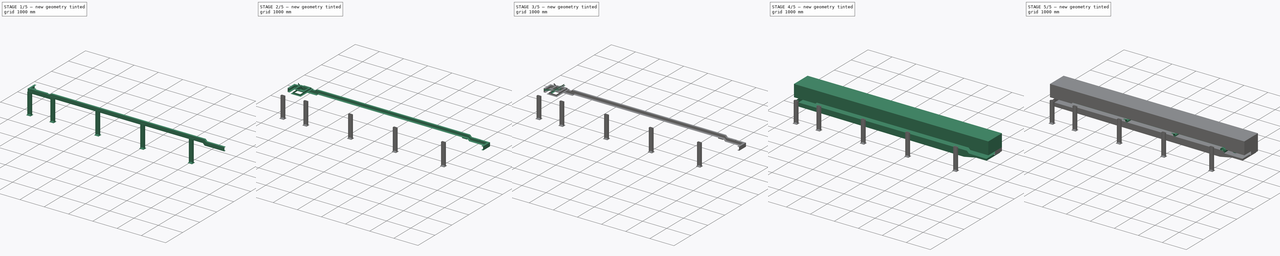
[diagram: build sequence overview — one tinted view per stage of 5, left to right]
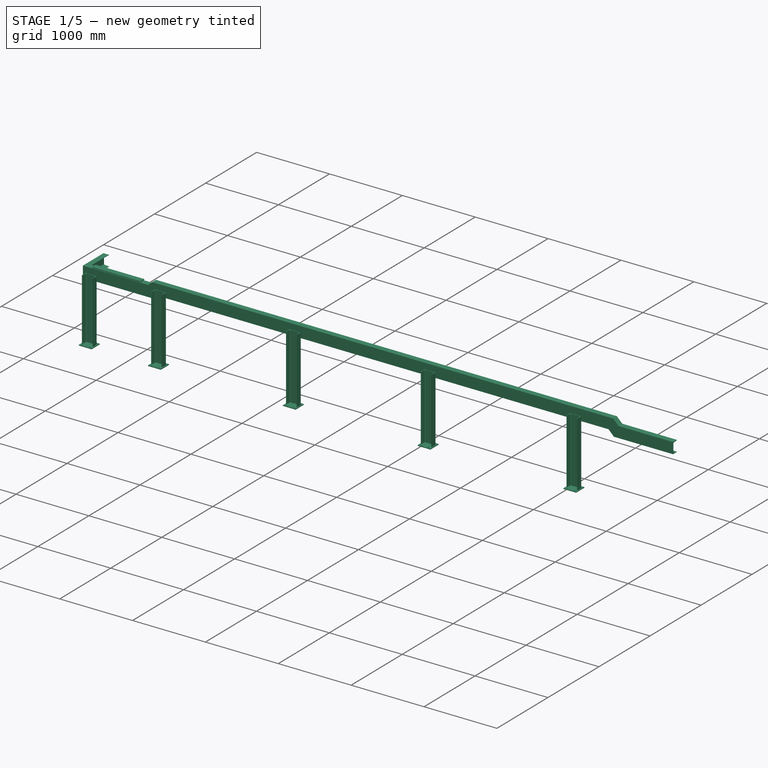
[diagram: stage 1 of 5 — iso view after this stage's code; geometry added in this stage tinted green]
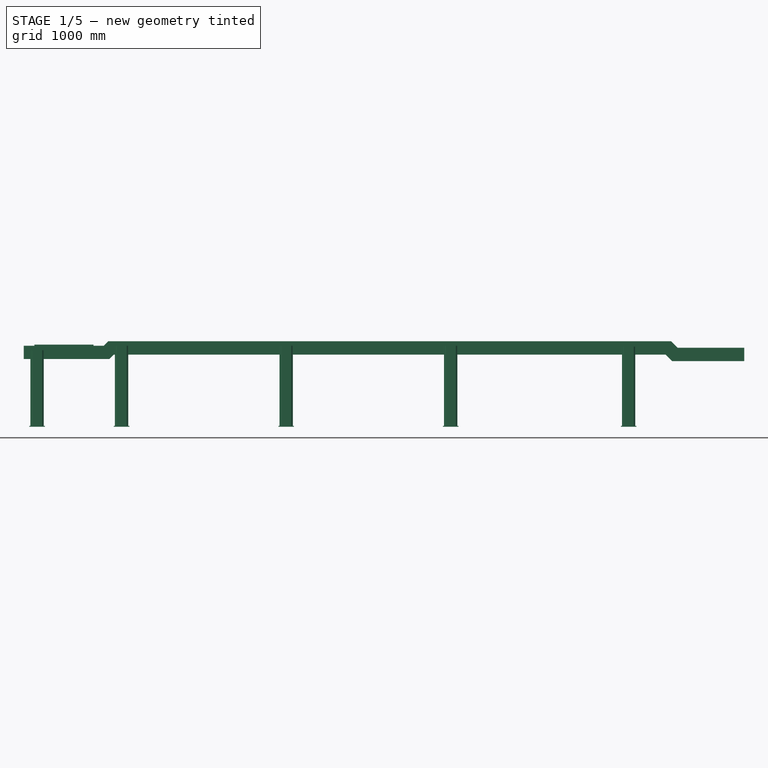
[diagram: stage 1 of 5 — front view after this stage's code; geometry added in this stage tinted green]
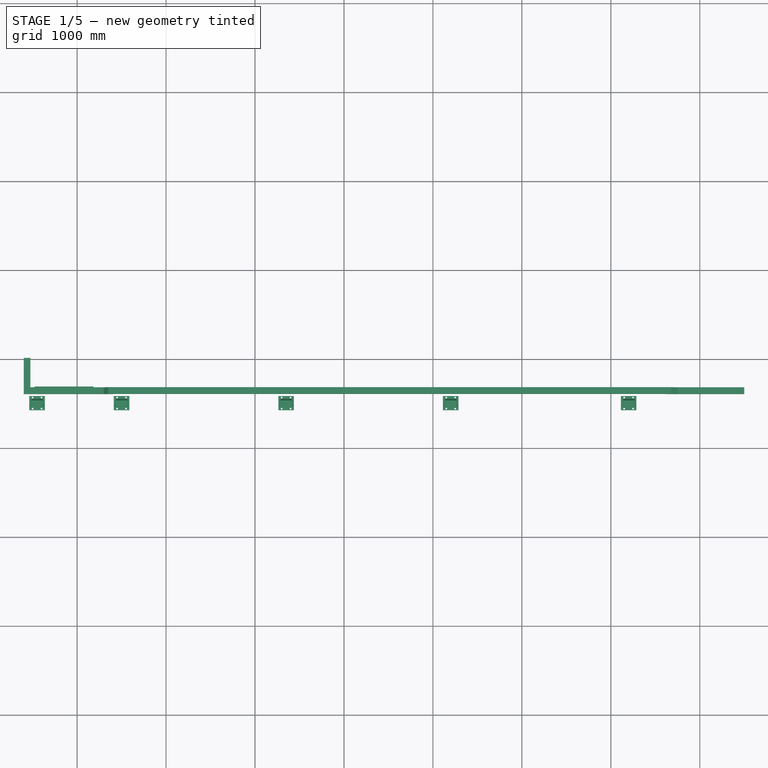
[diagram: stage 1 of 5 — top view after this stage's code; geometry added in this stage tinted green]
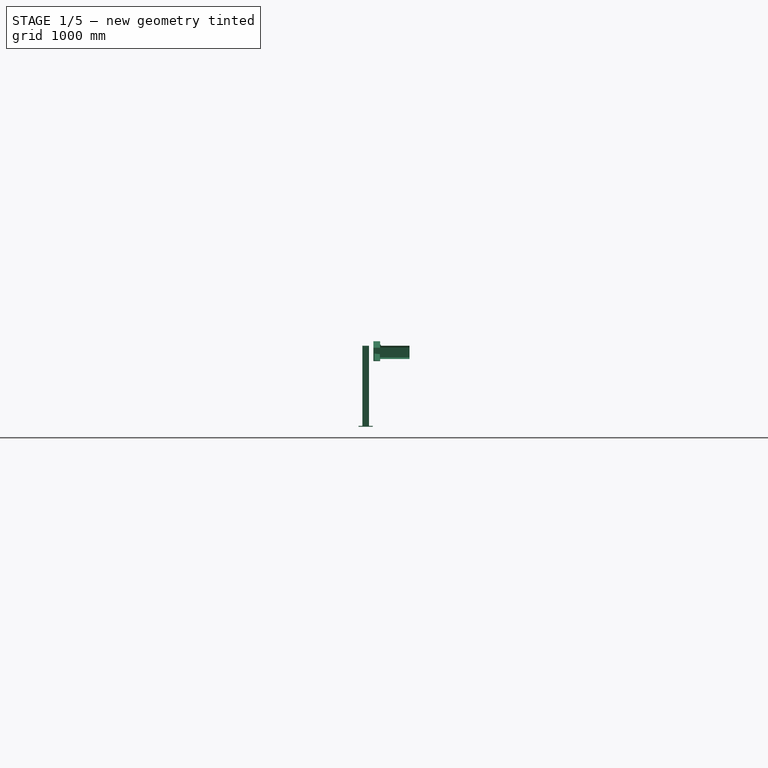
[diagram: stage 1 of 5 — right view after this stage's code; geometry added in this stage tinted green]
FCSTD DOCUMENT  (FreeCAD 1.0R39285 (Git))
Label: BeltCv500BAssy_M
License: All rights reserved
objects: Sketcher::SketchObject×43, App::Part×26, Part::FeaturePython×22, Part::Extrusion×20, PartDesign::Pad×12, Part::MultiFuse×11, Part::Feature×9, PartDesign::Body×9, Part::Cut×7, Part::Mirroring×6, Spreadsheet::Sheet×5, Part::Sweep×5, PartDesign::Pocket×5, Part::Compound×3, PartDesign::LinearPattern×3, PartDesign::Mirrored×3, PartDesign::Chamfer×1
note: 241 computed .brp shape members not serialized (recipe doc carries the construction recipe); baked Part::Feature solids carry a one-line shape summary decoded from their .brp

FEATURE [Spreadsheet::Sheet] Spreadsheet006  label="shtOutlet"
  cells = A1='outlet; A2='w0; B2(w0)=300; A3='l0; B3(l0)=650; A4='t0; B4(t0)=6; A5='h0; B5(h0)=50; A6='b0; B6(b0)=50; A7='sita0; B7(sita0)=0
FEATURE [App::Part] Part001  label="outlet"
  Group = -> [Spreadsheet006,Body002,Body003,Cut001]
  Origin = -> Origin005
  Placement = pos=(7268,0,-338) rot=(0,0,1;0rad)
  expr: .Placement.Base.x = Spreadsheet.C0 + 268
FEATURE [App::Part] Part014  label="waterReceptacle"
  Group = -> [Single_flange_straight_pipe,Fusion009,Single_flange_straight_pipe001,Sketch024,Sketch032,Sketch023,Extrude015,Extrude032,Sketch033,Cut,Part001]
  Origin = -> Origin018
FEATURE [Sketcher::SketchObject] Sketch056
  ArcFitTolerance = 0
  FullyConstrained = true
  MakeInternals = false
  MapMode = 5
  Placement = pos=(0,0,14) rot=(1,0,0;1.5708rad)
  expr: Constraints[11] = Spreadsheet.C0 + 1000
  expr: Constraints[14] = 59 mm
  sketch-geometry (5):
    g0: LineSegment StartX=-600 StartY=-99 StartZ=0 EndX=250 EndY=-99 EndZ=0
    g1: LineSegment StartX=250 StartY=-99 StartZ=0 EndX=309 EndY=-40 EndZ=0
    g2: LineSegment StartX=309 StartY=-40 StartZ=0 EndX=6728 EndY=-40 EndZ=0
    g3: LineSegment StartX=6728 StartY=-40 StartZ=0 EndX=6800 EndY=-112 EndZ=0
    g4: LineSegment StartX=6800 StartY=-112 StartZ=0 EndX=8000 EndY=-112 EndZ=0
  constraints (16):
    c: Horizontal(g0)
    c: Coincident(g0,g1)
    c: Coincident(g1,g2)
    c: Horizontal(g2)
    c: Coincident(g2,g3)
    c: Coincident(g3,g4)
    c: Horizontal(g4)
    c: DistanceX(g0,g-1) = 600
    c: Angle(g1,g0) = 2.35619
    c: DistanceX(g-1,g0) = 250
    c: Angle(g4,g3) = 2.35619
    c: DistanceX(g-1,g4) = 8000
    c: DistanceX(g4,g4) = 1200
    c: DistanceY(g0,g-1) = 99
    c: DistanceY(g0,g1) = 59
    c: DistanceY(g-1,g3) = -112
FEATURE [Part::Feature] ChannelSteel003
  Placement = pos=(-600,-2.2e-14,-239) rot=(0,0,1;0rad)
  shape: bbox 2e-07 x 75 x 150 mm, 0 faces, 0 solids (baked)
FEATURE [Sketcher::SketchObject] Sketch057
  ArcFitTolerance = 0
  FullyConstrained = true
  MakeInternals = false
  MapMode = 5
  Placement = pos=(0,0,0) rot=(1,0,0;1.5708rad)
  expr: Constraints[13] = Spreadsheet.C0
  expr: Constraints[16] = Spreadsheet.h1
  expr: Constraints[17] = -89 mm
  expr: Constraints[18] = Spreadsheet.h2
  expr: Constraints[8] = 300 mm
  sketch-geometry (6):
    g0: LineSegment StartX=-600 StartY=-89 StartZ=0 EndX=300 EndY=-89 EndZ=0
    g1: LineSegment StartX=300 StartY=-89 StartZ=0 EndX=350 EndY=-39 EndZ=0
    g2: LineSegment StartX=350 StartY=-39 StartZ=0 EndX=6677 EndY=-39 EndZ=0
    g3: LineSegment StartX=6677 StartY=-39 StartZ=0 EndX=6750 EndY=-112 EndZ=0
    g4: LineSegment StartX=6750 StartY=-112 StartZ=0 EndX=7500 EndY=-112 EndZ=0
    g5: LineSegment [constr] StartX=0 StartY=0 StartZ=0 EndX=7000 EndY=0 EndZ=0
  constraints (19):
    c: Horizontal(g0)
    c: Coincident(g0,g1)
    c: Coincident(g1,g2)
    c: Horizontal(g2)
    c: Coincident(g2,g3)
    c: Coincident(g3,g4)
    c: Horizontal(g4)
    c: DistanceX(g0,g-1) = 600
    c: DistanceX(g-1,g0) = 300
    c: Angle(g1,g0) = 2.35619
    c: Angle(g4,g3) = 2.35619
    c: PointOnObject(g5,g-1)
    c: Coincident(g5,g-1)
    c: DistanceX(g5,g5) = 7000
    c: DistanceX(g5,g4) = 500
    c: DistanceX(g3,g5) = 250
    c: DistanceY(g0,g1) = 50
    c: DistanceY(g-1,g0) = -89
    c: DistanceY(g3,g3) = 73
FEATURE [Part::Sweep] Sweep005
  Frenet = false
  Placement = pos=(0,-405,0) rot=(0,0,1;0rad)
  Sections = -> [ChannelSteel003]
  Solid = true
  Spine = -> Sketch057 [Edge1,Edge2,Edge3,Edge4,Edge5]
  Transition = 1
  expr: .Placement.Base.y = -Spreadsheet.W0 / 2
FEATURE [Part::FeaturePython] ChannelSteel004  # WARN: FeaturePython — macro-defined, semantics opaque (R4)
  B = 75
  H = 150
  L = 1000
  Placement = pos=(-600,0,-239) rot=(0,0,1;0rad)
  Solid = false
  g0 = 7.85
  mass = 0
  size = 3
  standard = SS
  t1 = 6.5
  t2 = 10
FEATURE [Part::Extrusion] Extrude037
  Base = -> ChannelSteel004
  Dir = (0,1,0)
  DirMode = 2
  FaceMakerClass = Part::FaceMakerBullseye
  FaceMakerMode = 3
  LengthFwd = 405
  LengthRev = 0
  Reversed = true
  Solid = false
  Symmetric = false
  expr: LengthFwd = Spreadsheet.W0 / 2
FEATURE [Part::MultiFuse] Fusion015
  Refine = true
  Shapes = -> [Sweep005,Extrude037]
FEATURE [Part::Extrusion] Extrude039
  Base = -> Sketch058
  Dir = (0,0,1)
  DirMode = 2
  FaceMakerClass = Part::FaceMakerBullseye
  FaceMakerMode = 3
  LengthFwd = 12
  LengthRev = 0
  Solid = true
  Symmetric = false
FEATURE [App::Part] Part030  label="Frame"
  Group = -> [Part028,Mirror007,Sketch056]
  Origin = -> Origin044
  expr: .Placement.Base.z = 1000 - Spreadsheet.Ht
FEATURE [App::Part] Part017  label="body"
  Group = -> [Part015,Part014,Part013,Part011,Part010,Part006,Part030]
  Origin = -> Origin020
  expr: .Placement.Base.z = Spreadsheet.Ht - 1000
  expr: .Placement.Rotation.Angle = -Spreadsheet.k
FEATURE [Part::FeaturePython] BasePlate004  # WARN: FeaturePython — macro-defined, semantics opaque (R4)
  B = 175
  D = 19
  H = 160
  b1 = 25
  h1 = 30
  sface = 0
FEATURE [Part::Extrusion] Extrude040
  Base = -> BasePlate004
  Dir = (0,0,1)
  DirMode = 2
  FaceMakerClass = Part::FaceMakerBullseye
  FaceMakerMode = 3
  LengthFwd = 10
  LengthRev = 0
  Solid = true
  Symmetric = false
FEATURE [Part::FeaturePython] Channel004  # WARN: FeaturePython — macro-defined, semantics opaque (R4)
  B = 75
  H = 150
  L = 860
  Solid = true
  g0 = 7.85
  mass = 14.5382
  size = 3
  standard = SS
  expr: L = str(Spreadsheet.Ht - 140 - 450 * tan(Spreadsheet.k))
FEATURE [Part::MultiFuse] Fusion020  label="PostC004"
  Placement = pos=(-450,-492.5,-1000) rot=(0,0,-1;1.5708rad)
  Shapes = -> [Extrude040,Channel004]
  expr: .Placement.Base.z = -Spreadsheet.Ht
FEATURE [Part::FeaturePython] BasePlate005  # WARN: FeaturePython — macro-defined, semantics opaque (R4)
  B = 175
  D = 19
  H = 160
  b1 = 25
  h1 = 30
  sface = 0
FEATURE [Part::FeaturePython] Channel005  # WARN: FeaturePython — macro-defined, semantics opaque (R4)
  B = 75
  H = 150
  L = 910
  Solid = true
  g0 = 7.85
  mass = 15.3834
  size = 3
  standard = SS
  expr: L = str(Spreadsheet.Ht - 90 + (Spreadsheet.C0 - 1300 + 500) * tan(Spreadsheet.k))
FEATURE [Part::Extrusion] Extrude041
  Base = -> BasePlate005
  Dir = (0,0,1)
  DirMode = 2
  FaceMakerClass = Part::FaceMakerBullseye
  FaceMakerMode = 3
  LengthFwd = 10
  LengthRev = 0
  Solid = true
  Symmetric = false
FEATURE [Part::MultiFuse] Fusion021  label="PostC005"
  Placement = pos=(500,-492.5,-1000) rot=(0,0,-1;1.5708rad)
  Shapes = -> [Extrude041,Channel005]
  expr: .Placement.Base.z = -Spreadsheet.Ht
FEATURE [Part::FeaturePython] BasePlate006  # WARN: FeaturePython — macro-defined, semantics opaque (R4)
  B = 175
  D = 19
  H = 160
  b1 = 25
  h1 = 30
  sface = 0
FEATURE [Part::FeaturePython] Channel006  # WARN: FeaturePython — macro-defined, semantics opaque (R4)
  B = 75
  H = 150
  L = 900
  Solid = true
  g0 = 7.85
  mass = 15.2144
  size = 3
  standard = SS
  expr: L = str(Spreadsheet.Ht - 100 + (Spreadsheet.C0 - 200) * tan(Spreadsheet.k))
FEATURE [Part::Extrusion] Extrude042
  Base = -> BasePlate006
  Dir = (0,0,1)
  DirMode = 2
  FaceMakerClass = Part::FaceMakerBullseye
  FaceMakerMode = 3
  LengthFwd = 10
  LengthRev = 0
  Solid = true
  Symmetric = false
FEATURE [Part::MultiFuse] Fusion022  label="ヘッド部001"
  Placement = pos=(6200,-492.5,-1000) rot=(0,0,-1;1.5708rad)
  Shapes = -> [Extrude042,Channel006]
  expr: .Placement.Base.x = Spreadsheet.C0 - 800
  expr: .Placement.Base.z = -Spreadsheet.Ht
FEATURE [Sketcher::SketchObject] Sketch061
  ArcFitTolerance = 0
  FullyConstrained = true
  MakeInternals = false
  Placement = pos=(0,0,0) rot=(1,0,0;1.5708rad)
  expr: Constraints[11] = -90 + 500 * tan(Spreadsheet.k)
  expr: Constraints[8] = 180 - Spreadsheet.k
  expr: Constraints[9] = Spreadsheet.C0 - 1000
  sketch-geometry (4):
    g0: LineSegment StartX=425 StartY=-90 StartZ=0 EndX=6425 EndY=-90 EndZ=0
    g1: LineSegment StartX=6425 StartY=-90 StartZ=0 EndX=6425 EndY=910 EndZ=0
    g2: LineSegment StartX=6425 StartY=910 StartZ=0 EndX=425 EndY=910 EndZ=0
    g3: LineSegment StartX=425 StartY=910 StartZ=0 EndX=425 EndY=-90 EndZ=0
  constraints (12):
    c: Coincident(g0,g1)
    c: Vertical(g1)
    c: Coincident(g1,g2)
    c: Horizontal(g2)
    c: Coincident(g2,g3)
    c: Coincident(g3,g0)
    c: Vertical(g3)
    c: DistanceX(g-1,g0) = 425
    c: Angle(g0,g-1) = 3.14159
    c: DistanceX(g2,g2) = 6000
    c: DistanceY(g1,g1) = 1000
    c: DistanceY(g-1,g0) = -90
FEATURE [Part::Extrusion] Extrude043
  Base = -> Sketch061
  Dir = (0,-1,2e-16)
  DirMode = 2
  FaceMakerClass = Part::FaceMakerBullseye
  FaceMakerMode = 3
  LengthFwd = 600
  LengthRev = 0
  Solid = true
  Symmetric = false
FEATURE [Part::FeaturePython] Array005  label="Array"  # Draft array (typed FeaturePython)
  Angle = 360
  ArrayType = 0
  Axis = (0,0,1)
  Base = -> Fusion021
  Center = (0,0,0)
  Count = 2
  Fuse = true
  IntervalAxis = (0,0,0)
  IntervalX = (1850,0,0)
  IntervalY = (0,100,0)
  IntervalZ = (0,0,100)
  NumberCircles = 3
  NumberPolar = 5
  NumberX = 2
  NumberY = 1
  NumberZ = 1
  Placement = pos=(1850,0,0) rot=(0,0,1;0rad)
  RadialDistance = 50
  Symmetry = 1
  TangentialDistance = 25
  expr: .IntervalX.x = Spreadsheet.post_x
  expr: .Placement.Base.x = Spreadsheet.post_x
  expr: NumberX = Spreadsheet.post_c + 1
FEATURE [Part::MultiFuse] Fusion023  label="Fusion013"
  Refine = true
  Shapes = -> [Array005,Fusion021]
FEATURE [Part::Cut] Cut008
  Base = -> Fusion023
  Refine = true
  Tool = -> Extrude043
FEATURE [Part::Cut] Cut009
  Base = -> Fusion022
  Refine = true
  Tool = -> Extrude043
FEATURE [App::Part] Part031  label="post003"
  Group = -> [BasePlate004,Channel004,Extrude040,Fusion020,Extrude042,Extrude041,Extrude043,BasePlate005,Sketch061,Fusion021,Fusion022,Fusion023,Channel006,Channel005,BasePlate006,Array005,Cut008,Cut009]
  Origin = -> Origin045
  Placement = pos=(0,50,0) rot=(0,1,0;0rad)
FEATURE [App::Part] Part032  label="Post"
  Group = -> [Part031]
  Origin = -> Origin046
  expr: .Placement.Base.z = Spreadsheet.Ht - 1000
FEATURE [App::Part] Part002  label="500B_motorpulley"
  Group = -> [Spreadsheet,Part017,Part032]
  Origin = -> Origin007
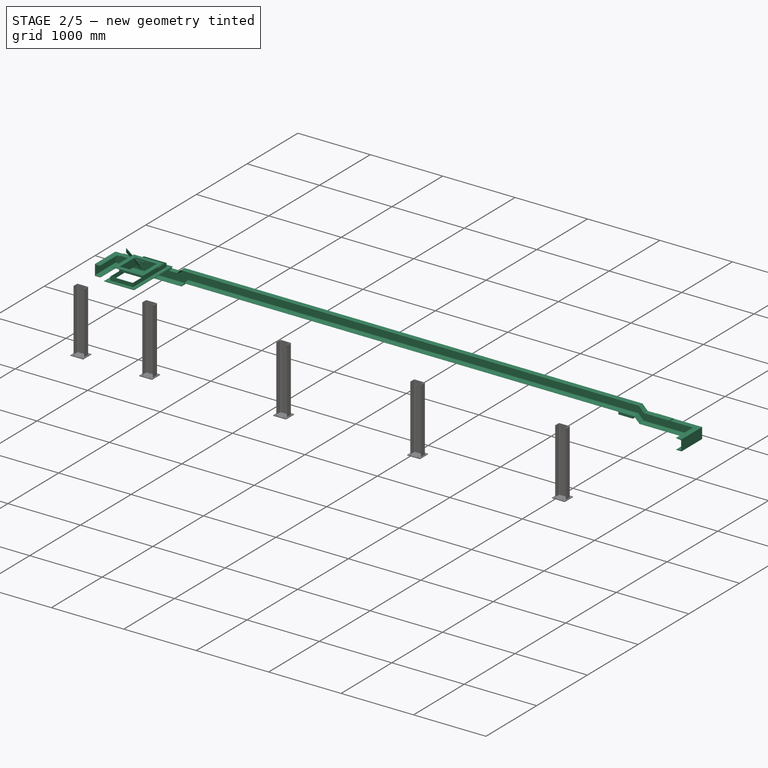
[diagram: stage 2 of 5 — iso view after this stage's code; geometry added in this stage tinted green]
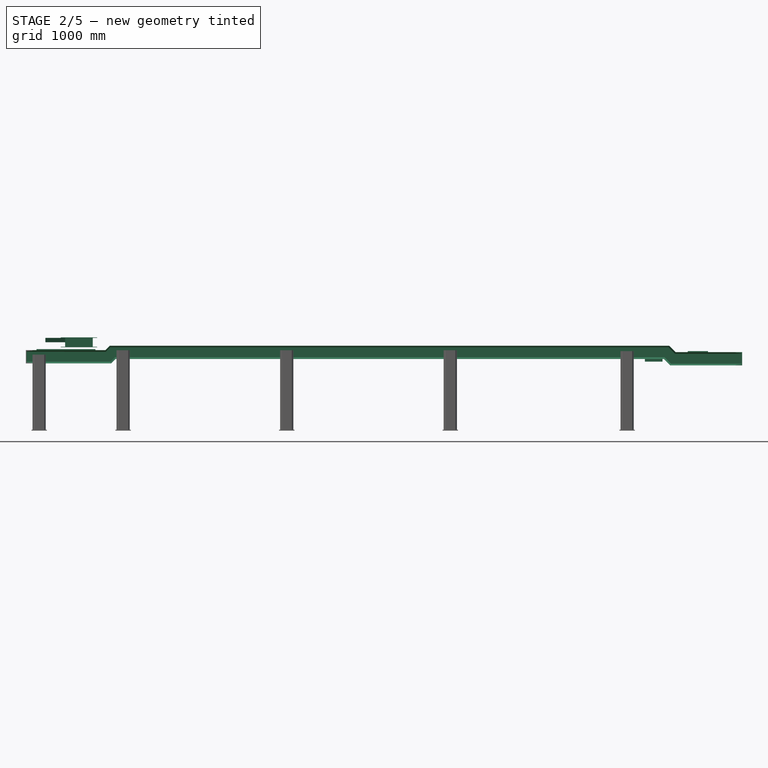
[diagram: stage 2 of 5 — front view after this stage's code; geometry added in this stage tinted green]
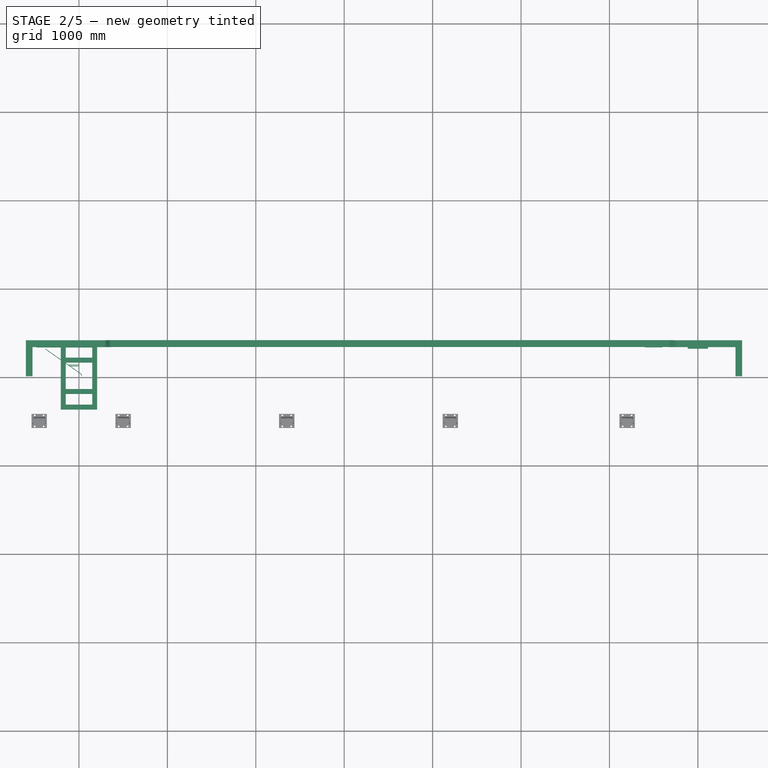
[diagram: stage 2 of 5 — top view after this stage's code; geometry added in this stage tinted green]
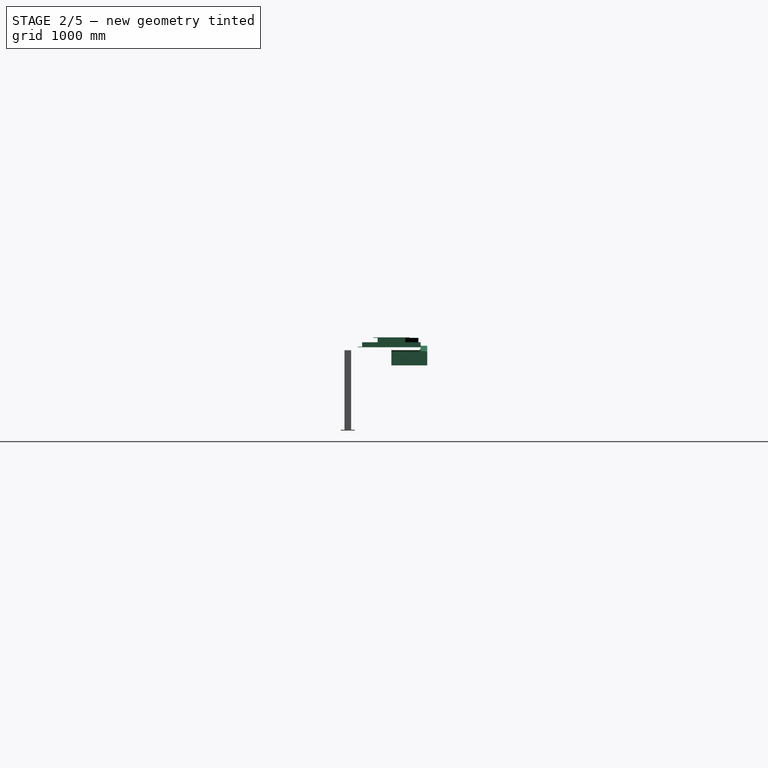
[diagram: stage 2 of 5 — right view after this stage's code; geometry added in this stage tinted green]
FEATURE [Sketcher::SketchObject] Sketch040
  ArcFitTolerance = 1e-06
  AttachmentSupport = -> [XY_Plane029]
  FullyConstrained = true
  MakeInternals = false
  MapMode = 5
  expr: Constraints[15] = (Spreadsheet004.B0 + 100) / 2
  sketch-geometry (6):
    g0: LineSegment StartX=-379.628 StartY=300 StartZ=0 EndX=16.0601 EndY=22.9363 EndZ=0
    g1: ArcOfCircle CenterX=0 CenterY=0 CenterZ=0 NormalX=0 NormalY=0 NormalZ=1 AngleXU=0 Radius=28 StartAngle=0 EndAngle=0.959931
    g2: ArcOfCircle CenterX=0 CenterY=0 CenterZ=0 NormalX=0 NormalY=0 NormalZ=1 AngleXU=0 Radius=34 StartAngle=0 EndAngle=0.959931
    g3: LineSegment StartX=19.5016 StartY=27.8512 StartZ=0 EndX=-376.186 EndY=304.915 EndZ=0
    g4: LineSegment StartX=-376.186 StartY=304.915 StartZ=0 EndX=-379.628 EndY=300 EndZ=0
    g5: LineSegment StartX=34 StartY=0 StartZ=0 EndX=28 EndY=0 EndZ=0
  constraints (16):
    c: Tangent(g0,g1) = 1.5708
    c: Coincident(g3,g4)
    c: Coincident(g4,g0)
    c: Coincident(g2,g1)
    c: Coincident(g2,g-1)
    c: Tangent(g2,g3) = -1.5708
    c: Perpendicular(g4,g3)
    c: Parallel(g0,g3)
    c: Radius(g1) = 28
    c: Horizontal(g5)
    c: PointOnObject(g5,g-1)
    c: Coincident(g1,g5)
    c: Coincident(g2,g5)
    c: Angle(g3,g-1) = 0.610865
    c: Distance(g4,g4) = 6
    c: DistanceY(g-1,g0) = 300
FEATURE [PartDesign::Pad] Pad006
  Direction = (0,0,1)
  Length = 50
  Length2 = 10
  Profile = -> Sketch040
  ReferenceAxis = -> Sketch040 [N_Axis]
  Refine = true
  Suppressed = false
  Type = 0
FEATURE [Sketcher::SketchObject] Sketch041
  ArcFitTolerance = 1e-06
  AttachmentSupport = -> [XY_Plane029]
  FullyConstrained = false
  MakeInternals = false
  MapMode = 5
  sketch-geometry (9):
    g0: LineSegment StartX=-94.6058 StartY=107.75 StartZ=0 EndX=-103.175 EndY=113.75 EndZ=0
    g1: LineSegment StartX=-103.175 StartY=113.75 StartZ=0 EndX=-1.74057 EndY=113.75 EndZ=0
    g2: LineSegment StartX=-1.74057 StartY=113.75 StartZ=0 EndX=-1.74057 EndY=107.75 EndZ=0
    g3: LineSegment StartX=-1.74057 StartY=107.75 StartZ=0 EndX=-94.6058 EndY=107.75 EndZ=0
    g4: LineSegment StartX=-113.172 StartY=120.75 StartZ=0 EndX=-121.741 EndY=126.75 EndZ=0
    g5: LineSegment StartX=-121.741 StartY=126.75 StartZ=0 EndX=-1.74057 EndY=126.75 EndZ=0
    g6: LineSegment StartX=-1.74057 StartY=126.75 StartZ=0 EndX=-1.74057 EndY=120.75 EndZ=0
    g7: LineSegment StartX=-1.74057 StartY=120.75 StartZ=0 EndX=-113.172 EndY=120.75 EndZ=0
    g8: LineSegment [constr] StartX=-135.198 StartY=117.25 StartZ=0 EndX=130.377 EndY=117.25 EndZ=0
  constraints (26):
    c: Coincident(g0,g1)
    c: Horizontal(g1)
    c: Coincident(g1,g2)
    c: Vertical(g2)
    c: Coincident(g2,g3)
    c: Coincident(g3,g0)
    c: Horizontal(g3)
    c: Coincident(g4,g5)
    c: Horizontal(g5)
    c: Coincident(g5,g6)
    c: Vertical(g6)
    c: Coincident(g6,g7)
    c: Coincident(g7,g4)
    c: Horizontal(g7)
    c: DistanceX(g5,g5) = 120
    c: Parallel(g4,g-3)
    c: Horizontal(g8)
    c: Distance(g8,g-1) = 117.25
    c: DistanceY(g6,g6) = 6
    c: DistanceY(g2,g2) = 6
    c: Vertical(g1,g6)
    c: PointOnObject(g4,g-3)
    c: Distance(g6,g8) = 3.5
    c: PointOnObject(g0,g-3)
    c: Parallel(g0,g-3)
    c: Distance(g1,g8) = 3.5
FEATURE [PartDesign::Pad] Pad007
  BaseFeature = -> Pad006
  Direction = (0,0,1)
  Length = 50
  Length2 = 10
  Profile = -> Sketch041
  ReferenceAxis = -> Sketch041 [N_Axis]
  Refine = true
  Suppressed = false
  Type = 0
FEATURE [PartDesign::Body] Body004
  AllowCompound = false
  Group = -> [Sketch040,Pad006,Sketch041,Pad007,Chamfer,Sketch049,Pocket005,LinearPattern,Sketch050,Pocket,Mirrored]
  Origin = -> Origin029
  Tip = -> Mirrored
FEATURE [App::Part] Part023  label="scraperBody"
  Group = -> [Body004]
  Origin = -> Origin030
FEATURE [App::Part] Part006  label="scraper"
  Group = -> [Part023,Part024,Part025,Part026,Spreadsheet004,Part007,Mirror006,Compound002]
  Origin = -> Origin011
  Placement = pos=(594,0,-128.3) rot=(0,0,1;0rad)
FEATURE [Sketcher::SketchObject] Sketch051
  ArcFitTolerance = 1e-06
  AttachmentSupport = -> [XZ_Plane038]
  FullyConstrained = true
  MakeInternals = false
  MapMode = 5
  Placement = pos=(0,0,0) rot=(1,0,0;1.5708rad)
  expr: Constraints[11] = Spreadsheet005.h0 + 10
  expr: Constraints[8] = Spreadsheet005.w0
  expr: Constraints[9] = Spreadsheet005.sita0
  sketch-geometry (5):
    g0: LineSegment StartX=-150 StartY=0 StartZ=0 EndX=150 EndY=0 EndZ=0
    g1: LineSegment StartX=150 StartY=0 StartZ=0 EndX=150 EndY=60 EndZ=0
    g2: LineSegment StartX=150 StartY=60 StartZ=0 EndX=-150 EndY=60 EndZ=0
    g3: LineSegment StartX=-150 StartY=60 StartZ=0 EndX=-150 EndY=0 EndZ=0
    g4: GeomPoint X=-1.15e-14 Y=60 Z=0
  constraints (12):
    c: PointOnObject(g0,g-1)
    c: Coincident(g0,g1)
    c: Vertical(g1)
    c: Coincident(g1,g2)
    c: Coincident(g2,g3)
    c: Coincident(g3,g0)
    c: Vertical(g3)
    c: Symmetric(g0,g0,g-2)
    c: DistanceX(g0,g0) = 300
    c: Angle(g0,g2) = 0
    c: Symmetric(g2,g2,g4)
    c: DistanceY(g-1,g4) = 60
FEATURE [PartDesign::Pad] Pad
  Direction = (0,-1,2e-16)
  Length = 300
  Length2 = 10
  Midplane = true
  Placement = pos=(0,0,0) rot=(1,0,0;1.5708rad)
  Profile = -> Sketch051
  ReferenceAxis = -> Sketch051 [N_Axis]
  Refine = true
  Suppressed = false
  Type = 0
  expr: Length = Spreadsheet005.l0
FEATURE [PartDesign::Body] Body
  AllowCompound = false
  Group = -> [Sketch051,Pad]
  Origin = -> Origin038
  Tip = -> Pad
FEATURE [Sketcher::SketchObject] Sketch052
  ArcFitTolerance = 1e-06
  AttachmentSupport = -> [XZ_Plane039]
  FullyConstrained = true
  MakeInternals = false
  MapMode = 5
  Placement = pos=(0,0,0) rot=(1,0,0;1.5708rad)
  expr: .Constraints.sita = Spreadsheet005.sita0
  expr: Constraints[11] = Spreadsheet005.h0
  expr: Constraints[8] = Spreadsheet005.w0 + Spreadsheet005.t0 * 2
  sketch-geometry (5):
    g0: LineSegment StartX=-156 StartY=0 StartZ=0 EndX=156 EndY=0 EndZ=0
    g1: LineSegment StartX=156 StartY=0 StartZ=0 EndX=156 EndY=50 EndZ=0
    g2: LineSegment StartX=156 StartY=50 StartZ=0 EndX=-156 EndY=50 EndZ=0
    g3: LineSegment StartX=-156 StartY=50 StartZ=0 EndX=-156 EndY=0 EndZ=0
    g4: GeomPoint X=-6.2e-15 Y=50 Z=0
  constraints (12):
    c: PointOnObject(g0,g-1)
    c: Coincident(g0,g1)
    c: Vertical(g1)
    c: Coincident(g1,g2)
    c: Coincident(g2,g3)
    c: Coincident(g3,g0)
    c: Vertical(g3)
    c: Symmetric(g0,g0,g-2)
    c: DistanceX(g0,g0) = 312
    c: Angle(g0,g2) = 0  'sita'
    c: Symmetric(g2,g2,g4)
    c: DistanceY(g-1,g4) = 50
FEATURE [PartDesign::Pad] Pad001
  Direction = (0,-1,2e-16)
  Length = 312
  Length2 = 10
  Midplane = true
  Placement = pos=(0,0,0) rot=(1,0,0;1.5708rad)
  Profile = -> Sketch052
  ReferenceAxis = -> Sketch052 [N_Axis]
  Refine = true
  Suppressed = false
  Type = 0
  expr: Length = Spreadsheet005.l0 + Spreadsheet005.t0 * 2
FEATURE [Sketcher::SketchObject] Sketch053
  ArcFitTolerance = 1e-06
  AttachmentSupport = -> [Pad001]
  FullyConstrained = true
  MakeInternals = false
  MapMode = 5
  Placement = pos=(0,2.2e-14,50) rot=(0,0,1;3.14159rad)
  expr: .AttachmentOffset.Base.x = -<<shtInlet>>.h0 * sin(<<shtInlet>>.sita0) * cos(<<shtInlet>>.sita0)
  expr: Constraints[10] = Spreadsheet005.w0 + Spreadsheet005.t0 * 2 + Spreadsheet005.b0 * 2
  expr: Constraints[11] = Spreadsheet005.l0 + Spreadsheet005.t0 * 2 + Spreadsheet005.b0 * 2
  sketch-geometry (5):
    g0: LineSegment StartX=-206 StartY=-206 StartZ=0 EndX=206 EndY=-206 EndZ=0
    g1: LineSegment StartX=206 StartY=-206 StartZ=0 EndX=206 EndY=206 EndZ=0
    g2: LineSegment StartX=206 StartY=206 StartZ=0 EndX=-206 EndY=206 EndZ=0
    g3: LineSegment StartX=-206 StartY=206 StartZ=0 EndX=-206 EndY=-206 EndZ=0
    g4: GeomPoint [constr] X=0 Y=0 Z=0
  constraints (12):
    c: Coincident(g0,g1)
    c: Coincident(g1,g2)
    c: Coincident(g2,g3)
    c: Coincident(g3,g0)
    c: Horizontal(g0)
    c: Horizontal(g2)
    c: Vertical(g1)
    c: Vertical(g3)
    c: Symmetric(g2,g0,g4)
    c: Coincident(g4,g-1)
    c: DistanceX(g2,g2) = 412
    c: DistanceY(g3,g3) = 412
FEATURE [PartDesign::Pad] Pad002
  BaseFeature = -> Pad001
  Direction = (0,0,1)
  Length = 6
  Length2 = 10
  Placement = pos=(0,0,0) rot=(1,0,0;1.5708rad)
  Profile = -> Sketch053
  ReferenceAxis = -> Sketch053 [N_Axis]
  Refine = true
  Suppressed = false
  Type = 0
FEATURE [PartDesign::Body] Body001
  AllowCompound = false
  Group = -> [Sketch052,Pad001,Sketch053,Pad002]
  Origin = -> Origin039
  Tip = -> Pad002
FEATURE [Part::Cut] Cut006
  Base = -> Body001
  Refine = true
  Tool = -> Body
FEATURE [Spreadsheet::Sheet] Spreadsheet005  label="shtInlet"
  cells = A1='inlet; A2='w0; B2(w0)=300; A3='l0; B3(l0)=300; A4='t0; B4(t0)=6; A5='h0; B5(h0)=50; A6='b0; B6(b0)=50; A7='sita0; B7(sita0)=0
FEATURE [App::Part] Part027  label="inlet"
  Group = -> [Spreadsheet005,Body,Body001,Cut006]
  Origin = -> Origin040
  Placement = pos=(300,0,411) rot=(0,0,1;0rad)
FEATURE [App::Part] Part013  label="Cover"
  Group = -> [Sketch021,Sketch020,Extrude012,Extrude033,Sketch034,Cut003,Part027]
  Origin = -> Origin017
FEATURE [Sketcher::SketchObject] Sketch054
  ArcFitTolerance = 1e-06
  AttachmentSupport = -> [XZ_Plane041]
  FullyConstrained = true
  MakeInternals = false
  MapMode = 5
  Placement = pos=(0,0,0) rot=(1,0,0;1.5708rad)
  expr: Constraints[11] = Spreadsheet006.h0 + 10
  expr: Constraints[8] = Spreadsheet006.w0
  expr: Constraints[9] = Spreadsheet006.sita0
  sketch-geometry (5):
    g0: LineSegment StartX=-150 StartY=0 StartZ=0 EndX=150 EndY=0 EndZ=0
    g1: LineSegment StartX=150 StartY=0 StartZ=0 EndX=150 EndY=60 EndZ=0
    g2: LineSegment StartX=150 StartY=60 StartZ=0 EndX=-150 EndY=60 EndZ=0
    g3: LineSegment StartX=-150 StartY=60 StartZ=0 EndX=-150 EndY=0 EndZ=0
    g4: GeomPoint X=-2.72e-14 Y=60 Z=0
  constraints (12):
    c: PointOnObject(g0,g-1)
    c: Coincident(g0,g1)
    c: Vertical(g1)
    c: Coincident(g1,g2)
    c: Coincident(g2,g3)
    c: Coincident(g3,g0)
    c: Vertical(g3)
    c: Symmetric(g0,g0,g-2)
    c: DistanceX(g0,g0) = 300
    c: Angle(g0,g2) = 0
    c: Symmetric(g2,g2,g4)
    c: DistanceY(g-1,g4) = 60
FEATURE [PartDesign::Pad] Pad003
  Direction = (0,-1,2e-16)
  Length = 650
  Length2 = 10
  Midplane = true
  Placement = pos=(0,0,0) rot=(1,0,0;1.5708rad)
  Profile = -> Sketch054
  ReferenceAxis = -> Sketch054 [N_Axis]
  Refine = true
  Suppressed = false
  Type = 0
  expr: Length = Spreadsheet006.l0
FEATURE [PartDesign::Body] Body002
  AllowCompound = false
  Group = -> [Sketch054,Pad003]
  Origin = -> Origin041
  Tip = -> Pad003
FEATURE [Sketcher::SketchObject] Sketch004
  ArcFitTolerance = 1e-06
  AttachmentSupport = -> [XZ_Plane004]
  FullyConstrained = true
  MakeInternals = false
  MapMode = 5
  Placement = pos=(0,0,0) rot=(1,0,0;1.5708rad)
  expr: .Constraints.sita = Spreadsheet006.sita0
  expr: Constraints[11] = Spreadsheet006.h0
  expr: Constraints[8] = Spreadsheet006.w0 + Spreadsheet006.t0 * 2
  sketch-geometry (5):
    g0: LineSegment StartX=-156 StartY=0 StartZ=0 EndX=156 EndY=0 EndZ=0
    g1: LineSegment StartX=156 StartY=0 StartZ=0 EndX=156 EndY=50 EndZ=0
    g2: LineSegment StartX=156 StartY=50 StartZ=0 EndX=-156 EndY=50 EndZ=0
    g3: LineSegment StartX=-156 StartY=50 StartZ=0 EndX=-156 EndY=0 EndZ=0
    g4: GeomPoint X=-6.4e-15 Y=50 Z=0
  constraints (12):
    c: PointOnObject(g0,g-1)
    c: Coincident(g0,g1)
    c: Vertical(g1)
    c: Coincident(g1,g2)
    c: Coincident(g2,g3)
    c: Coincident(g3,g0)
    c: Vertical(g3)
    c: Symmetric(g0,g0,g-2)
    c: DistanceX(g0,g0) = 312
    c: Angle(g0,g2) = 0  'sita'
    c: Symmetric(g2,g2,g4)
    c: DistanceY(g-1,g4) = 50
FEATURE [PartDesign::Pad] Pad004
  Direction = (0,-1,2e-16)
  Length = 662
  Length2 = 10
  Midplane = true
  Placement = pos=(0,0,0) rot=(1,0,0;1.5708rad)
  Profile = -> Sketch004
  ReferenceAxis = -> Sketch004 [N_Axis]
  Refine = true
  Suppressed = false
  Type = 0
  expr: Length = Spreadsheet006.l0 + Spreadsheet006.t0 * 2
FEATURE [Sketcher::SketchObject] Sketch055
  ArcFitTolerance = 1e-06
  AttachmentSupport = -> [Pad004]
  FullyConstrained = true
  MakeInternals = false
  MapMode = 5
  Placement = pos=(0,2.2e-14,50) rot=(0,0,1;3.14159rad)
  expr: .AttachmentOffset.Base.x = -<<shtOutlet>>.h0 * sin(<<shtOutlet>>.sita0) * cos(<<shtOutlet>>.sita0)
  expr: Constraints[10] = (Spreadsheet006.w0 + Spreadsheet006.t0 * 2 + Spreadsheet006.b0 * 2) / cos(Spreadsheet006.sita0)
  expr: Constraints[11] = Spreadsheet006.l0 + Spreadsheet006.t0 * 2 + Spreadsheet006.b0 * 2
  sketch-geometry (5):
    g0: LineSegment StartX=-206 StartY=-381 StartZ=0 EndX=206 EndY=-381 EndZ=0
    g1: LineSegment StartX=206 StartY=-381 StartZ=0 EndX=206 EndY=381 EndZ=0
    g2: LineSegment StartX=206 StartY=381 StartZ=0 EndX=-206 EndY=381 EndZ=0
    g3: LineSegment StartX=-206 StartY=381 StartZ=0 EndX=-206 EndY=-381 EndZ=0
    g4: GeomPoint [constr] X=0 Y=0 Z=0
  constraints (12):
    c: Coincident(g0,g1)
    c: Coincident(g1,g2)
    c: Coincident(g2,g3)
    c: Coincident(g3,g0)
    c: Horizontal(g0)
    c: Horizontal(g2)
    c: Vertical(g1)
    c: Vertical(g3)
    c: Symmetric(g2,g0,g4)
    c: Coincident(g4,g-1)
    c: DistanceX(g2,g2) = 412
    c: DistanceY(g3,g3) = 762
FEATURE [PartDesign::Pad] Pad005
  BaseFeature = -> Pad004
  Direction = (0,0,1)
  Length = 6
  Length2 = 10
  Placement = pos=(0,0,0) rot=(1,0,0;1.5708rad)
  Profile = -> Sketch055
  ReferenceAxis = -> Sketch055 [N_Axis]
  Refine = true
  Suppressed = false
  Type = 0
FEATURE [PartDesign::Body] Body003
  AllowCompound = false
  Group = -> [Sketch004,Pad004,Sketch055,Pad005]
  Origin = -> Origin004
  Tip = -> Pad005
FEATURE [Part::Cut] Cut001
  Base = -> Body003
  Placement = pos=(0,0,0) rot=(0,1,0;3.14159rad)
  Refine = true
  Tool = -> Body002
FEATURE [Sketcher::SketchObject] Sketch058
  ArcFitTolerance = 0
  AttachmentSupport = -> [Sweep005]
  FullyConstrained = true
  MakeInternals = false
  MapMode = 5
  Placement = pos=(0,-405,-89) rot=(0,0,1;0rad)
  sketch-geometry (4):
    g0: LineSegment StartX=-480 StartY=8 StartZ=0 EndX=185 EndY=8 EndZ=0
    g1: LineSegment StartX=185 StartY=8 StartZ=0 EndX=185 EndY=83 EndZ=0
    g2: LineSegment StartX=185 StartY=83 StartZ=0 EndX=-480 EndY=83 EndZ=0
    g3: LineSegment StartX=-480 StartY=83 StartZ=0 EndX=-480 EndY=8 EndZ=0
  constraints (12):
    c: Coincident(g0,g1)
    c: Coincident(g1,g2)
    c: Coincident(g2,g3)
    c: Coincident(g3,g0)
    c: Horizontal(g0)
    c: Horizontal(g2)
    c: Vertical(g1)
    c: Vertical(g3)
    c: DistanceY(g1,g1) = 75
    c: DistanceY(g-1,g0) = 8
    c: DistanceX(g-1,g0) = 185
    c: DistanceX(g0,g0) = 665
FEATURE [Sketcher::SketchObject] Sketch059
  ArcFitTolerance = 0
  AttachmentSupport = -> [Sweep005]
  FullyConstrained = false
  MakeInternals = false
  MapMode = 5
  Placement = pos=(0,-405,-112) rot=(0,0,1;0rad)
  expr: Constraints[9] = Spreadsheet.C0
  sketch-geometry (5):
    g0: LineSegment StartX=6885 StartY=16.2326 StartZ=0 EndX=7115 EndY=16.2326 EndZ=0
    g1: LineSegment StartX=7115 StartY=16.2326 StartZ=0 EndX=7115 EndY=96.2326 EndZ=0
    g2: LineSegment StartX=7115 StartY=96.2326 StartZ=0 EndX=6885 EndY=96.2326 EndZ=0
    g3: LineSegment StartX=6885 StartY=96.2326 StartZ=0 EndX=6885 EndY=16.2326 EndZ=0
    g4: LineSegment [constr] StartX=7000 StartY=284.577 StartZ=0 EndX=7000 EndY=-153.677 EndZ=0
  constraints (13):
    c: Coincident(g0,g1)
    c: Coincident(g1,g2)
    c: Coincident(g2,g3)
    c: Coincident(g3,g0)
    c: Horizontal(g0)
    c: Horizontal(g2)
    c: Vertical(g1)
    c: Vertical(g3)
    c: Vertical(g4)
    c: DistanceX(g-2,g4) = 7000
    c: DistanceY(g1,g1) = 80
    c: DistanceX(g0,g0) = 230
    c: DistanceX(g4,g0) = 115
FEATURE [Part::Extrusion] Extrude035
  Base = -> Sketch059
  Dir = (0,0,1)
  DirMode = 2
  FaceMakerClass = Part::FaceMakerBullseye
  FaceMakerMode = 3
  LengthFwd = 12
  LengthRev = 0
  Solid = true
  Symmetric = false
FEATURE [Sketcher::SketchObject] Sketch060
  ArcFitTolerance = 0
  AttachmentSupport = -> [Sweep005]
  FullyConstrained = false
  MakeInternals = false
  MapMode = 5
  Placement = pos=(0,-405,-189) rot=(1,0,0;3.14159rad)
  expr: Constraints[13] = Spreadsheet.C0 - 500
  sketch-geometry (5):
    g0: LineSegment StartX=6400 StartY=-9 StartZ=0 EndX=6600 EndY=-9 EndZ=0
    g1: LineSegment StartX=6600 StartY=-9 StartZ=0 EndX=6600 EndY=-79 EndZ=0
    g2: LineSegment StartX=6600 StartY=-79 StartZ=0 EndX=6400 EndY=-79 EndZ=0
    g3: LineSegment StartX=6400 StartY=-79 StartZ=0 EndX=6400 EndY=-9 EndZ=0
    g4: LineSegment [constr] StartX=6500 StartY=33.7597 StartZ=0 EndX=6500 EndY=-194.785 EndZ=0
  constraints (14):
    c: Coincident(g0,g1)
    c: Coincident(g1,g2)
    c: Coincident(g2,g3)
    c: Coincident(g3,g0)
    c: Horizontal(g0)
    c: Horizontal(g2)
    c: Vertical(g1)
    c: Vertical(g3)
    c: Vertical(g4)
    c: DistanceX(g0,g0) = 200
    c: DistanceY(g3,g3) = 70
    c: DistanceX(g4,g0) = 100
    c: DistanceY(g-1,g0) = -9
    c: DistanceX(g-1,g4) = 6500
FEATURE [Part::Extrusion] Extrude036
  Base = -> Sketch060
  Dir = (0,0,-1)
  DirMode = 2
  FaceMakerClass = Part::FaceMakerBullseye
  FaceMakerMode = 3
  LengthFwd = 30
  LengthRev = 0
  Solid = true
  Symmetric = false
FEATURE [Part::FeaturePython] ChannelSteel005  # WARN: FeaturePython — macro-defined, semantics opaque (R4)
  B = 75
  H = 150
  L = 1000
  Placement = pos=(7500,0,-112) rot=(0,1,0;3.14159rad)
  Solid = false
  g0 = 7.85
  mass = 0
  size = 3
  standard = SS
  t1 = 6.5
  t2 = 10
  expr: .Placement.Base.x = Spreadsheet.C0 + 500
FEATURE [Part::Extrusion] Extrude038
  Base = -> ChannelSteel005
  Dir = (0,1,0)
  DirMode = 2
  FaceMakerClass = Part::FaceMakerBullseye
  FaceMakerMode = 3
  LengthFwd = 405
  LengthRev = 0
  Reversed = true
  Solid = false
  Symmetric = false
  expr: LengthFwd = Spreadsheet.W0 / 2
FEATURE [Part::MultiFuse] Fusion016
  Refine = true
  Shapes = -> [Fusion015,Extrude039]
FEATURE [Part::MultiFuse] Fusion017
  Refine = true
  Shapes = -> [Fusion016,Extrude038]
FEATURE [Part::MultiFuse] Fusion018
  Shapes = -> [Fusion017,Extrude035]
FEATURE [Part::MultiFuse] Fusion019
  Refine = true
  Shapes = -> [Fusion018,Extrude036]
  expr: .Placement.Base.z = Spreadsheet.Ht - 1000
FEATURE [App::Part] Part028  label="本体001"
  Group = -> [Fusion015,ChannelSteel005,ChannelSteel004,ChannelSteel003,Sweep005,Sketch057,Sketch058,Extrude036,Extrude037,Extrude039,Extrude038,Extrude035,Sketch059,Sketch060,Fusion017,Fusion018,Fusion016,Fusion019]
  Origin = -> Origin042
FEATURE [Part::Mirroring] Mirror007  label="本体 (mirrored)001"
  Base = (-1000,0,0)
  Normal = (0,-1,0)
  Source = -> Part028
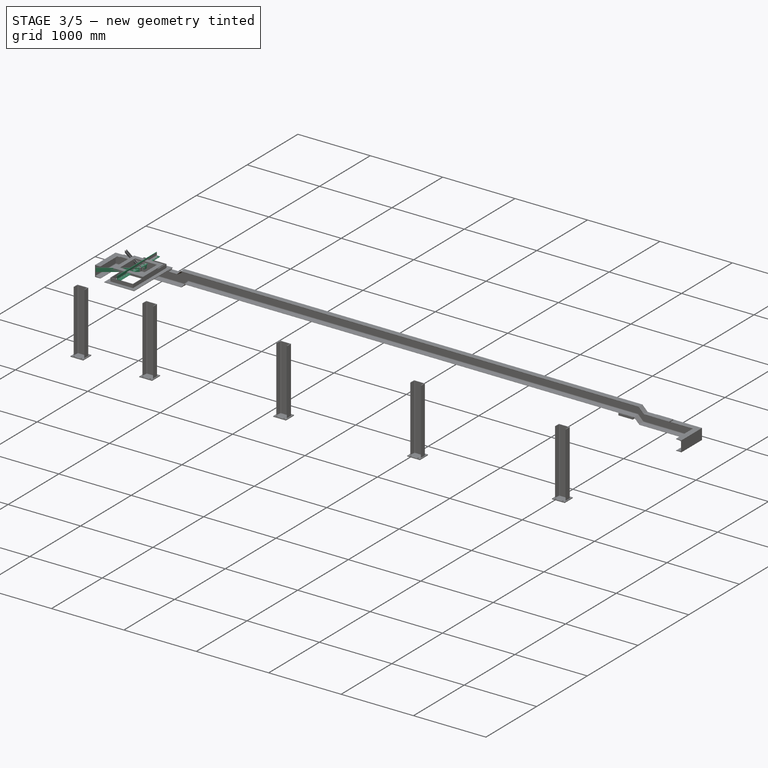
[diagram: stage 3 of 5 — iso view after this stage's code; geometry added in this stage tinted green]
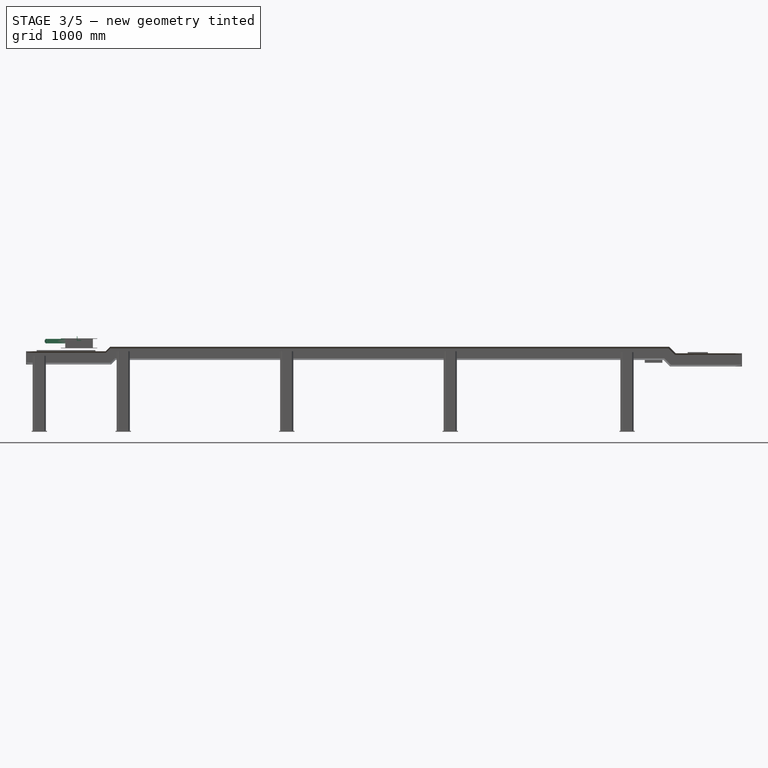
[diagram: stage 3 of 5 — front view after this stage's code; geometry added in this stage tinted green]
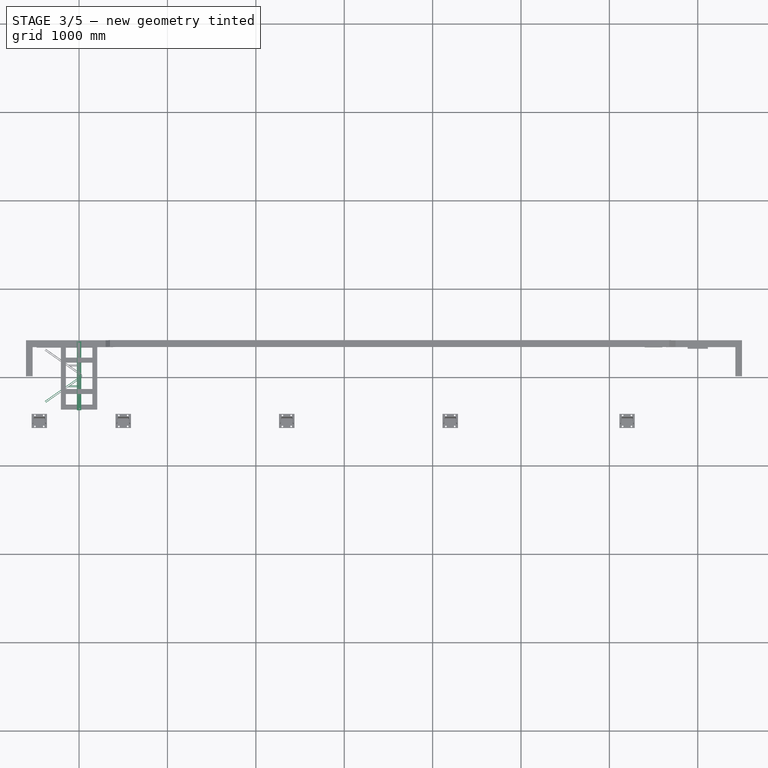
[diagram: stage 3 of 5 — top view after this stage's code; geometry added in this stage tinted green]
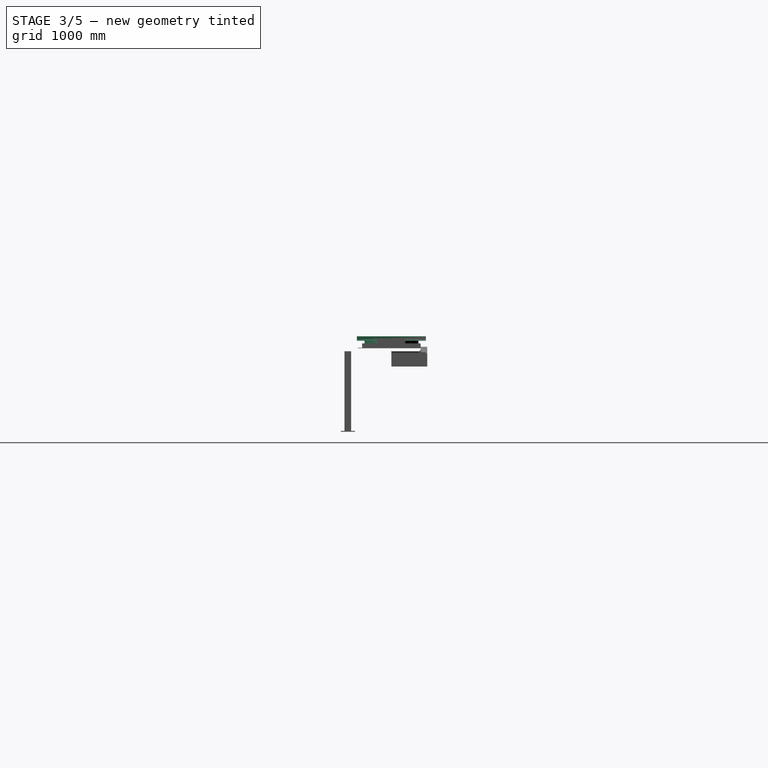
[diagram: stage 3 of 5 — right view after this stage's code; geometry added in this stage tinted green]
FEATURE [PartDesign::Chamfer] Chamfer
  Angle = 45
  Base = -> Pad007 [Edge42,Edge34,Edge33,Edge41]
  BaseFeature = -> Pad007
  ChamferType = 0
  FlipDirection = false
  Refine = true
  Size = 5
  Size2 = 1
  SupportTransform = false
  Suppressed = false
  UseAllEdges = false
FEATURE [App::Part] Part025  label="LinkPlate"
  Group = -> [Mirror005,Body006,Fusion014]
  Origin = -> Origin034
  Placement = pos=(-27,0,25) rot=(0,1,0;-0.16057rad)
  expr: .Placement.Base.z = 25
  expr: .Placement.Rotation.Angle = -Spreadsheet004.angle
FEATURE [Sketcher::SketchObject] Sketch045
  ArcFitTolerance = 1e-06
  AttachmentSupport = -> [XZ_Plane035]
  FullyConstrained = true
  MakeInternals = false
  MapMode = 5
  Placement = pos=(0,0,0) rot=(1,0,0;1.5708rad)
  sketch-geometry (5):
    g0: Circle CenterX=0 CenterY=0 CenterZ=0 NormalX=0 NormalY=0 NormalZ=1 AngleXU=0 Radius=7
    g1: ArcOfCircle CenterX=0 CenterY=0 CenterZ=0 NormalX=0 NormalY=0 NormalZ=1 AngleXU=0 Radius=25 StartAngle=3.14159 EndAngle=6.28319
    g2: LineSegment StartX=-25 StartY=3.1e-15 StartZ=0 EndX=-25 EndY=30 EndZ=0
    g3: LineSegment StartX=-25 StartY=30 StartZ=0 EndX=25 EndY=30 EndZ=0
    g4: LineSegment StartX=25 StartY=30 StartZ=0 EndX=25 EndY=-7.1e-15 EndZ=0
  constraints (13):
    c: Coincident(g0,g-1)
    c: Coincident(g1,g0)
    c: PointOnObject(g1,g-1)
    c: PointOnObject(g1,g-1)
    c: Tangent(g1,g2) = 1.5708
    c: Coincident(g2,g3)
    c: Horizontal(g3)
    c: Coincident(g3,g4)
    c: Coincident(g4,g1)
    c: Vertical(g4)
    c: DistanceX(g3,g3) = 50
    c: DistanceY(g-1,g2) = 30
    c: Diameter(g0) = 14
FEATURE [PartDesign::Pad] Pad010
  Direction = (0,-1,2e-16)
  Length = 6
  Length2 = 10
  Midplane = true
  Placement = pos=(0,0,0) rot=(1,0,0;1.5708rad)
  Profile = -> Sketch045
  ReferenceAxis = -> Sketch045 [N_Axis]
  Refine = true
  Suppressed = false
  Type = 0
FEATURE [PartDesign::Body] Body007
  AllowCompound = false
  Group = -> [Sketch045,Pad010]
  Origin = -> Origin035
  Placement = pos=(0,7,0) rot=(0,0,1;0rad)
  Tip = -> Pad010
FEATURE [Part::FeaturePython] Clone  label="Body008"  # Draft clone (typed FeaturePython)
  AttacherType = Attacher::AttachEngine3D
  Fuse = false
  Objects = -> [Body007]
  Placement = pos=(0,-7,0) rot=(0,0,1;0rad)
  Scale = (1,1,1)
FEATURE [Part::Compound] Compound001  label="Compound"
  Links = -> [Body007,Clone]
  Placement = pos=(0,117.5,0) rot=(0,0,1;0rad)
FEATURE [Part::FeaturePython] AngleSteel001  # WARN: FeaturePython — macro-defined, semantics opaque (R4)
  A = 50
  B = 50
  L = 780
  Placement = pos=(0,-390,55) rot=(1,0,0;4.71239rad)
  Solid = true
  g0 = 7.85
  mass = 3.45567
  size = 7
  standard = SS_Equal
  t = 6
  type = 00_Angle
  expr: .Placement.Base.y = -(Spreadsheet004.B0 + 280) / 2
  expr: L = Spreadsheet004.B0 + 280
FEATURE [Sketcher::SketchObject] Sketch046
  ArcFitTolerance = 1e-06
  AttachmentSupport = -> [AngleSteel001]
  ExternalGeometry = -> [AngleSteel001,AngleSteel]
  FullyConstrained = false
  MakeInternals = false
  MapMode = 5
  Placement = pos=(0,-390,36) rot=(0,0,1;0rad)
  sketch-geometry (2):
    g0: Circle CenterX=5 CenterY=760 CenterZ=0 NormalX=0 NormalY=0 NormalZ=1 AngleXU=0 Radius=7.5
    g1: Circle CenterX=5 CenterY=20 CenterZ=0 NormalX=0 NormalY=0 NormalZ=1 AngleXU=0 Radius=7.5
  constraints (5):
    c: Diameter(g0) = 15
    c: Diameter(g1) = 15
    c: DistanceY(g-1,g1) = 20
    c: Distance(g0,g-3) = 20
    c: DistanceX(g-6,g1) = 30
FEATURE [Part::Extrusion] Extrude034
  Base = -> Sketch046
  Dir = (0,0,1)
  DirMode = 2
  FaceMakerClass = Part::FaceMakerBullseye
  FaceMakerMode = 3
  LengthFwd = 10
  LengthRev = 0
  Reversed = true
  Solid = true
  Symmetric = false
FEATURE [Part::Cut] Cut005
  Base = -> AngleSteel001
  Refine = true
  Tool = -> Extrude034
FEATURE [App::Part] Part026  label="suport"
  Group = -> [Clone,Body007,Compound001,Clone002,Sketch046,AngleSteel001,Extrude034,Cut005]
  Origin = -> Origin010
  Placement = pos=(185.234,0,59.3745) rot=(0,0,1;0rad)
  expr: .Placement.Base.x = 215 * cos(Spreadsheet004.angle) - 27
  expr: .Placement.Base.z = 25 + 215 * sin(Spreadsheet004.angle)
FEATURE [Spreadsheet::Sheet] Spreadsheet004
  cells = A1='beltWidth; B1(B0)=500; A2='angle; B2(angle)=9.2
FEATURE [Sketcher::SketchObject] Sketch047
  ArcFitTolerance = 1e-06
  AttachmentSupport = -> [XY_Plane036]
  FullyConstrained = false
  MakeInternals = false
  MapMode = 5
  expr: Constraints[10] = 55
  expr: Constraints[13] = (Spreadsheet004.B0 + 100) / 2 - 8.5
  sketch-geometry (5):
    g0: LineSegment StartX=-385.114 StartY=291.5 StartZ=0 EndX=10.2615 EndY=14.6549 EndZ=0
    g1: LineSegment StartX=10.2615 StartY=14.6549 StartZ=0 EndX=6.82002 EndY=9.74 EndZ=0
    g2: LineSegment StartX=6.82002 StartY=9.74 StartZ=0 EndX=-388.556 EndY=286.585 EndZ=0
    g3: LineSegment StartX=-388.556 StartY=286.585 StartZ=0 EndX=-385.114 EndY=291.5 EndZ=0
    g4: LineSegment [constr] StartX=0 StartY=0 StartZ=0 EndX=9.3717 EndY=13.3842 EndZ=0
  constraints (14):
    c: Coincident(g0,g1)
    c: Coincident(g1,g2)
    c: Coincident(g2,g3)
    c: Coincident(g3,g0)
    c: Perpendicular(g3,g0)
    c: Parallel(g2,g0)
    c: Distance(g3,g3) = 6
    c: Angle(g2,g-1) = 0.610865
    c: Perpendicular(g0,g1)
    c: Coincident(g4,g-1)
    c: Angle(g-1,g4) = 0.959931
    c: PointOnObject(g1,g4)
    c: DistanceY(g-1,g1) = 9.74
    c: DistanceY(g-1,g0) = 291.5
FEATURE [PartDesign::Pad] Pad011
  Direction = (0,0,1)
  Length = 32
  Length2 = 10
  Profile = -> Sketch047
  ReferenceAxis = -> Sketch047 [N_Axis]
  Refine = true
  Suppressed = false
  Type = 0
FEATURE [Sketcher::SketchObject] Sketch048
  ArcFitTolerance = 1e-06
  AttachmentSupport = -> [Pad011]
  ExternalGeometry = -> [Pad011]
  FullyConstrained = true
  MakeInternals = false
  MapMode = 5
  Placement = pos=(6.82002,9.74,0) rot=(0.913318,-0.287968,-0.287968;1.66134rad)
  sketch-geometry (1):
    g0: Circle CenterX=-462.665 CenterY=16 CenterZ=0 NormalX=0 NormalY=0 NormalZ=1 AngleXU=0 Radius=6
  constraints (3):
    c: Diameter(g0) = 12
    c: Distance(g0,g-3) = 20
    c: DistanceY(g0,g-3) = 16
FEATURE [PartDesign::Pocket] Pocket004
  BaseFeature = -> Pad011
  Direction = (0.573576,0.819152,0)
  Length = 5
  Length2 = 5
  Profile = -> Sketch048
  ReferenceAxis = -> Sketch048 [N_Axis]
  Refine = true
  Suppressed = false
  Type = 1
FEATURE [PartDesign::LinearPattern] LinearPattern002
  BaseFeature = -> Pocket004
  Direction = -> Sketch048 [H_Axis]
  Length = 390
  Mode = 0
  Occurrences = 4
  Offset = 130
  Originals = -> [Pocket004]
  Refine = true
  Suppressed = false
  TransformMode = 0
FEATURE [PartDesign::Mirrored] Mirrored002
  BaseFeature = -> LinearPattern002
  MirrorPlane = -> XZ_Plane036
  Refine = true
  Suppressed = false
  TransformMode = 1
FEATURE [PartDesign::Body] Body008  label="Body009"
  AllowCompound = false
  Group = -> [Sketch047,Pad011,Sketch048,Pocket004,LinearPattern002,Mirrored002]
  Origin = -> Origin036
  Placement = pos=(0,0,9) rot=(0,0,1;0rad)
  Tip = -> Mirrored002
FEATURE [App::Part] Part007  label="clampingPlate"
  Group = -> [Body008]
  Origin = -> Origin037
FEATURE [Part::Mirroring] Mirror006  label="clampingPlate (mirrored)"
  Base = (-500,0,0)
  Normal = (0,-1,0)
  Source = -> Part007
FEATURE [Part::Compound] Compound002  label="ClampingPlate"
  Links = -> [Mirror006,Part007]
FEATURE [Sketcher::SketchObject] Sketch049
  ArcFitTolerance = 1e-06
  FullyConstrained = true
  MakeInternals = false
  MapMode = 5
  Placement = pos=(22.9431,32.7661,0) rot=(0.217607,0.690162,0.690162;2.71306rad)
  sketch-geometry (1):
    g0: Circle CenterX=454.477 CenterY=25 CenterZ=0 NormalX=0 NormalY=0 NormalZ=1 AngleXU=0 Radius=6
  constraints (3):
    c: Diameter(g0) = 12
    c: DistanceY(g-1,g0) = 25
    c: Distance(g0,g-3) = 20
FEATURE [PartDesign::Pocket] Pocket005
  BaseFeature = -> Chamfer
  Direction = (-0.573576,-0.819152,0)
  Length = 10
  Length2 = 5
  Profile = -> Sketch049
  ReferenceAxis = -> Sketch049 [N_Axis]
  Refine = true
  Suppressed = false
  Type = 0
FEATURE [PartDesign::LinearPattern] LinearPattern
  BaseFeature = -> Pocket005
  Direction = -> Sketch049 [H_Axis]
  Length = 390
  Mode = 0
  Occurrences = 4
  Offset = 130
  Originals = -> [Pocket005]
  Refine = true
  Reversed = true
  Suppressed = false
  TransformMode = 0
FEATURE [Sketcher::SketchObject] Sketch050
  ArcFitTolerance = 1e-06
  AttachmentSupport = -> [LinearPattern]
  ExternalGeometry = -> [LinearPattern]
  FullyConstrained = true
  MakeInternals = false
  MapMode = 5
  Placement = pos=(0,126.75,0) rot=(0,0.707107,0.707107;3.14159rad)
  sketch-geometry (1):
    g0: Circle CenterX=26.7406 CenterY=25 CenterZ=0 NormalX=0 NormalY=0 NormalZ=1 AngleXU=0 Radius=7
  constraints (3):
    c: Diameter(g0) = 14
    c: DistanceY(g-1,g0) = 25
    c: Distance(g0,g-3) = 25
FEATURE [PartDesign::Pocket] Pocket
  BaseFeature = -> LinearPattern
  Direction = (0,-1,2e-16)
  Length = 20
  Length2 = 5
  Profile = -> Sketch050
  ReferenceAxis = -> Sketch050 [N_Axis]
  Refine = true
  Suppressed = false
  Type = 0
FEATURE [PartDesign::Mirrored] Mirrored
  BaseFeature = -> Pocket
  MirrorPlane = -> XZ_Plane029
  Refine = true
  Suppressed = false
  TransformMode = 1
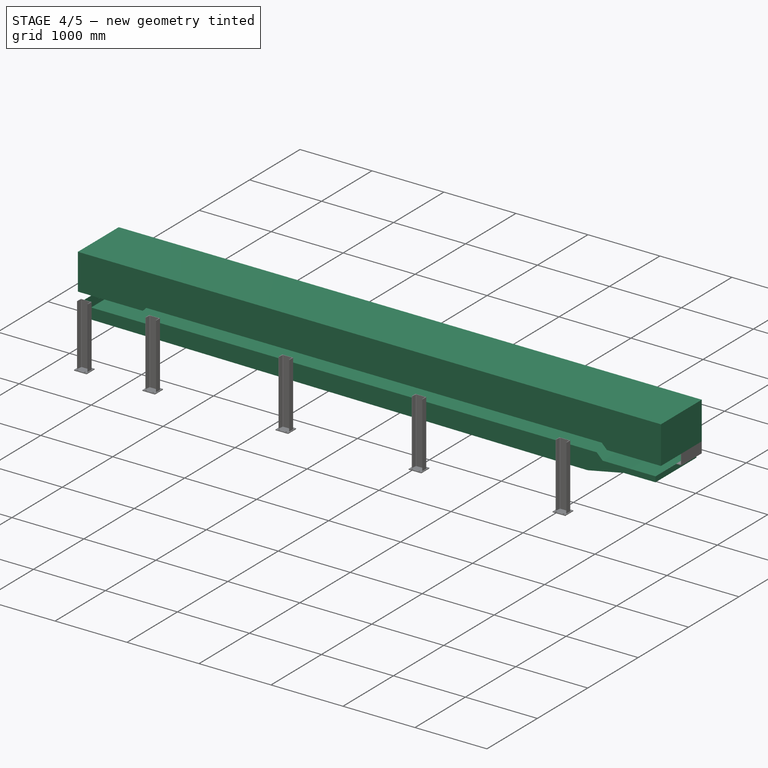
[diagram: stage 4 of 5 — iso view after this stage's code; geometry added in this stage tinted green]
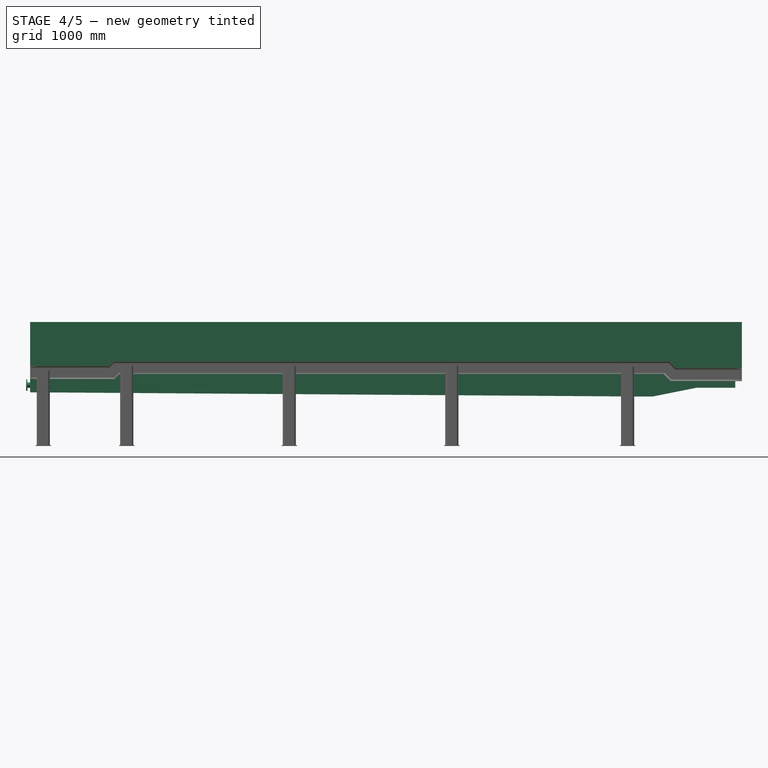
[diagram: stage 4 of 5 — front view after this stage's code; geometry added in this stage tinted green]
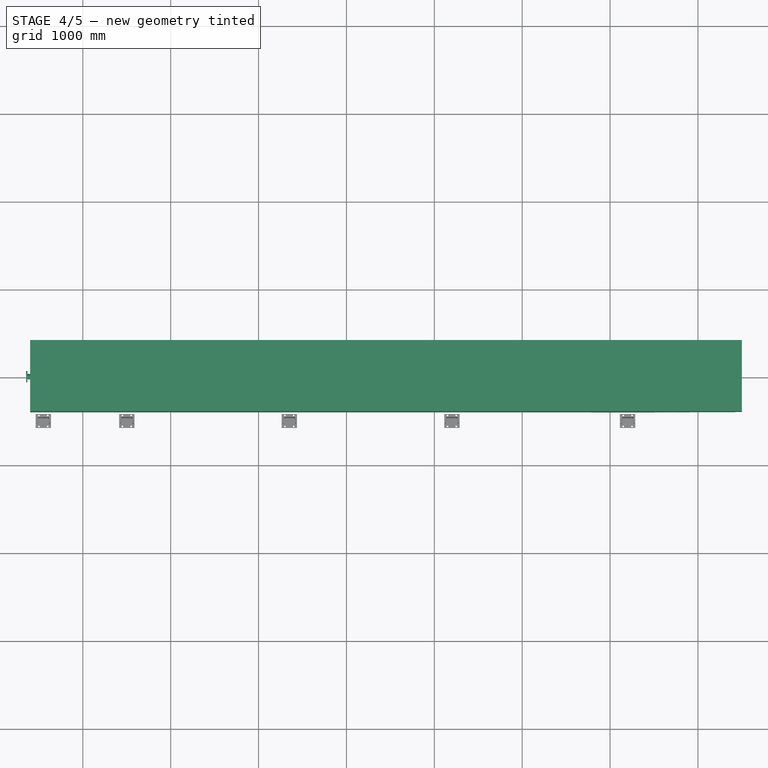
[diagram: stage 4 of 5 — top view after this stage's code; geometry added in this stage tinted green]
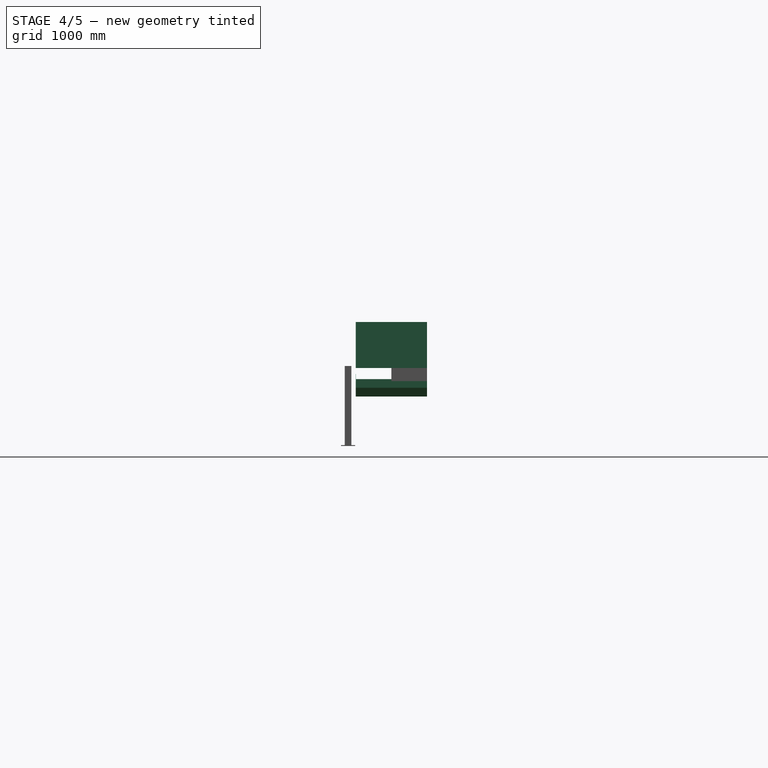
[diagram: stage 4 of 5 — right view after this stage's code; geometry added in this stage tinted green]
FEATURE [App::Part] Part011  label="Skirt"
  Group = -> [Part008,Mirror003]
  Origin = -> Origin015
  Placement = pos=(0,0,-13) rot=(0,0,1;0rad)
FEATURE [Sketcher::SketchObject] Sketch020
  ArcFitTolerance = 0
  FullyConstrained = true
  MakeInternals = false
  Placement = pos=(0,0,0) rot=(1,0,0;1.5708rad)
  expr: Constraints[22] = Spreadsheet.C0 + 1100
  sketch-geometry (8):
    g0: LineSegment StartX=-600 StartY=-89 StartZ=0 EndX=-600 EndY=411 EndZ=0
    g1: LineSegment StartX=-600 StartY=411 StartZ=0 EndX=7500 EndY=411 EndZ=0
    g2: LineSegment StartX=7500 StartY=411 StartZ=0 EndX=7500 EndY=-112 EndZ=0
    g3: LineSegment StartX=7500 StartY=-112 StartZ=0 EndX=6750 EndY=-112 EndZ=0
    g4: LineSegment StartX=6750 StartY=-112 StartZ=0 EndX=6677 EndY=-39 EndZ=0
    g5: LineSegment StartX=6677 StartY=-39 StartZ=0 EndX=350 EndY=-39 EndZ=0
    g6: LineSegment StartX=350 StartY=-39 StartZ=0 EndX=300 EndY=-89 EndZ=0
    g7: LineSegment StartX=300 StartY=-89 StartZ=0 EndX=-600 EndY=-89 EndZ=0
  constraints (24):
    c: Vertical(g0)
    c: Coincident(g0,g1)
    c: Horizontal(g1)
    c: Coincident(g1,g2)
    c: Vertical(g2)
    c: Coincident(g2,g3)
    c: Horizontal(g3)
    c: Coincident(g3,g4)
    c: Coincident(g4,g5)
    c: Horizontal(g5)
    c: Coincident(g5,g6)
    c: Coincident(g6,g7)
    c: Coincident(g7,g0)
    c: Horizontal(g7)
    c: Distance(g-1,g0) = 600
    c: Distance(g-1,g7) = 89
    c: DistanceX(g-1,g6) = 300
    c: Angle(g6,g5) = 2.35619
    c: DistanceY(g6,g5) = 50
    c: DistanceY(g-1,g2) = -112
    c: Angle(g3,g4) = 2.35619
    c: DistanceY(g0,g0) = 500
    c: DistanceX(g1,g1) = 8100
    c: DistanceX(g3,g3) = 750
FEATURE [Part::Extrusion] Extrude012
  Base = -> Sketch020
  Dir = (0,-1,2e-16)
  DirMode = 2
  FaceMakerClass = Part::FaceMakerBullseye
  FaceMakerMode = 3
  LengthFwd = 810
  LengthRev = 0
  Solid = true
  Symmetric = true
FEATURE [Sketcher::SketchObject] Sketch021
  ArcFitTolerance = 0
  FullyConstrained = true
  MakeInternals = false
  MapMode = 5
  Placement = pos=(0,9.04e-14,411) rot=(0,0,1;0rad)
  expr: Constraints[10] = .Constraints.w / 2
  sketch-geometry (4):
    g0: LineSegment StartX=400 StartY=-200 StartZ=0 EndX=800 EndY=-200 EndZ=0
    g1: LineSegment StartX=800 StartY=-200 StartZ=0 EndX=800 EndY=200 EndZ=0
    g2: LineSegment StartX=800 StartY=200 StartZ=0 EndX=400 EndY=200 EndZ=0
    g3: LineSegment StartX=400 StartY=200 StartZ=0 EndX=400 EndY=-200 EndZ=0
  constraints (12):
    c: Coincident(g0,g1)
    c: Coincident(g1,g2)
    c: Coincident(g2,g3)
    c: Coincident(g3,g0)
    c: Horizontal(g0)
    c: Horizontal(g2)
    c: Vertical(g1)
    c: Vertical(g3)
    c: DistanceX(g2,g2) = 400
    c: DistanceY(g3,g3) = 400  'w'
    c: DistanceY(g-1,g2) = 200
    c: DistanceX(g-1,g2) = 400
FEATURE [Sketcher::SketchObject] Sketch023
  ArcFitTolerance = 0
  FullyConstrained = true
  MakeInternals = false
  Placement = pos=(0,0,0) rot=(1,0,0;1.5708rad)
  expr: Constraints[29] = Spreadsheet.C0 + 425
  sketch-geometry (11):
    g0: LineSegment StartX=-600 StartY=-239 StartZ=0 EndX=362 EndY=-239 EndZ=0
    g1: LineSegment StartX=362 StartY=-239 StartZ=0 EndX=422 EndY=-179 EndZ=0
    g2: LineSegment StartX=422 StartY=-179 StartZ=0 EndX=6607 EndY=-179 EndZ=0
    g3: LineSegment StartX=6607 StartY=-179 StartZ=0 EndX=6690 EndY=-262 EndZ=0
    g4: LineSegment StartX=6690 StartY=-262 StartZ=0 EndX=7425 EndY=-262 EndZ=0
    g5: LineSegment StartX=6985 StartY=-337 StartZ=0 EndX=6485 EndY=-437 EndZ=0
    g6: LineSegment StartX=6485 StartY=-437 StartZ=0 EndX=6335 EndY=-437 EndZ=0
    g7: LineSegment StartX=6335 StartY=-437 StartZ=0 EndX=-600 EndY=-389 EndZ=0
    g8: LineSegment StartX=-600 StartY=-389 StartZ=0 EndX=-600 EndY=-239 EndZ=0
    g9: LineSegment StartX=6985 StartY=-337 StartZ=0 EndX=7425 EndY=-337 EndZ=0
    g10: LineSegment StartX=7425 StartY=-337 StartZ=0 EndX=7425 EndY=-262 EndZ=0
  constraints (33):
    c: Horizontal(g0)
    c: Coincident(g0,g1)
    c: Coincident(g1,g2)
    c: Horizontal(g2)
    c: Coincident(g2,g3)
    c: Coincident(g3,g4)
    c: Horizontal(g4)
    c: Coincident(g5,g6)
    c: Horizontal(g6)
    c: Coincident(g6,g7)
    c: Coincident(g7,g8)
    c: Coincident(g8,g0)
    c: Vertical(g8)
    c: DistanceY(g8,g8) = 150
    c: DistanceY(g0,g-1) = 239
    c: Angle(g1,g0) = 2.35619
    c: DistanceY(g-1,g2) = -179
    c: Angle(g4,g3) = 2.35619
    c: DistanceY(g-1,g3) = -262
    c: DistanceY(g5,g3) = 75
    c: DistanceX(g6,g6) = 150
    c: DistanceX(g5,g5) = 500
    c: DistanceY(g5,g5) = 100
    c: Horizontal(g9)
    c: Coincident(g10,g9)
    c: Coincident(g10,g4)
    c: Vertical(g10)
    c: Coincident(g9,g5)
    c: DistanceX(g5,g9) = 440
    c: DistanceX(g-2,g9) = 7425
    c: DistanceX(g4,g4) = 735
    c: DistanceX(g-2,g7) = -600
    c: DistanceX(g-2,g0) = 362
FEATURE [Part::Extrusion] Extrude015
  Base = -> Sketch023
  Dir = (0,-1,2e-16)
  DirMode = 2
  FaceMakerClass = Part::FaceMakerBullseye
  FaceMakerMode = 3
  LengthFwd = 810
  LengthRev = 0
  Solid = true
  Symmetric = true
FEATURE [Part::Sweep] Sweep
  Frenet = false
  Sections = -> [Sketch,Sketch002]
  Solid = false
  Spine = -> Sketch025 [Edge1]
  Transition = 1
FEATURE [Part::Extrusion] Extrude018
  Base = -> Sweep
  Dir = (0,0,1)
  DirMode = 0
  FaceMakerClass = Part::FaceMakerBullseye
  FaceMakerMode = 3
  LengthFwd = 10
  LengthRev = 0
  Solid = false
  Symmetric = false
FEATURE [Part::Sweep] Sweep004
  Frenet = false
  Sections = -> [Sketch001,Sketch003]
  Solid = false
  Spine = -> Sketch008 [Edge1]
  Transition = 1
FEATURE [Part::Extrusion] Extrude019
  Base = -> Sweep004
  Dir = (0,0,1)
  DirMode = 0
  FaceMakerClass = Part::FaceMakerBullseye
  FaceMakerMode = 3
  LengthFwd = 10
  LengthRev = 0
  Solid = false
  Symmetric = false
FEATURE [App::Part] Part015  label="Belt"
  Group = -> [Sketch005,Extrude,Sketch001,Sketch,Sketch002,Sketch003,Sketch025,Sketch008,Sketch009,Sweep003,Extrude017,Sweep,Extrude018,Sweep004,Extrude019]
  Origin = -> Origin
  Placement = pos=(0,0,-30) rot=(0,0,1;0rad)
FEATURE [Part::FeaturePython] Single_flange_straight_pipe001  # WARN: FeaturePython — macro-defined, semantics opaque (R4)
  L = 50
  Placement = pos=(-645,0,-306.37) rot=(0,0,1;0rad)
  dia = 6
  fittings = 06_Single_flange_straight_pipe
  material = 0
  standard = 0
  standard2 = 0
FEATURE [Part::Feature] Self_Aligning_Return_500
  Placement = pos=(1000,0,-210) rot=(0,0,1;1.5708rad)
  shape: bbox 258 x 790 x 295 mm, 133 faces, 4 solids (baked)
FEATURE [App::Part] Part010  label="Pulleys"
  Group = -> [Array001,Array,Part005,Part003,CPM2_4145,Self_Aligning_Carrier_500,Self_Aligning_Return_500]
  Origin = -> Origin014
FEATURE [Sketcher::SketchObject] Sketch032
  ArcFitTolerance = 0
  FullyConstrained = true
  MakeInternals = false
  MapMode = 5
  Placement = pos=(371.335,-4.166e-13,-1856.67) rot=(0,-1,0;0.197396rad)
  sketch-geometry (4):
    g0: LineSegment StartX=7890.01 StartY=-275 StartZ=0 EndX=8190.01 EndY=-275 EndZ=0
    g1: LineSegment StartX=8190.01 StartY=-275 StartZ=0 EndX=8190.01 EndY=275 EndZ=0
    g2: LineSegment StartX=8190.01 StartY=275 StartZ=0 EndX=7890.01 EndY=275 EndZ=0
    g3: LineSegment StartX=7890.01 StartY=275 StartZ=0 EndX=7890.01 EndY=-275 EndZ=0
  constraints (12):
    c: Coincident(g0,g1)
    c: Coincident(g1,g2)
    c: Coincident(g2,g3)
    c: Coincident(g3,g0)
    c: Horizontal(g0)
    c: Horizontal(g2)
    c: Vertical(g1)
    c: Vertical(g3)
    c: DistanceX(g1,g-3) = 20
    c: DistanceY(g1,g-3) = 130
    c: DistanceY(g-3,g0) = 130
    c: DistanceX(g0,g0) = 300
FEATURE [Sketcher::SketchObject] Sketch033
  ArcFitTolerance = 0
  FullyConstrained = true
  MakeInternals = false
  Placement = pos=(0,0,0) rot=(1,0,0;1.5708rad)
  expr: Constraints[29] = Spreadsheet.C0 + 422
  sketch-geometry (11):
    g0: LineSegment StartX=-597 StartY=-239 StartZ=0 EndX=362 EndY=-239 EndZ=0
    g1: LineSegment StartX=362 StartY=-239 StartZ=0 EndX=422 EndY=-179 EndZ=0
    g2: LineSegment StartX=422 StartY=-179 StartZ=0 EndX=6604 EndY=-179 EndZ=0
    g3: LineSegment StartX=6604 StartY=-179 StartZ=0 EndX=6687 EndY=-262 EndZ=0
    g4: LineSegment StartX=6687 StartY=-262 StartZ=0 EndX=7422 EndY=-262 EndZ=0
    g5: LineSegment StartX=6982 StartY=-337 StartZ=0 EndX=6482 EndY=-437 EndZ=0
    g6: LineSegment StartX=6482 StartY=-437 StartZ=0 EndX=6332 EndY=-437 EndZ=0
    g7: LineSegment StartX=6332 StartY=-437 StartZ=0 EndX=-597 EndY=-389 EndZ=0
    g8: LineSegment StartX=-597 StartY=-389 StartZ=0 EndX=-597 EndY=-239 EndZ=0
    g9: LineSegment StartX=6982 StartY=-337 StartZ=0 EndX=7422 EndY=-337 EndZ=0
    g10: LineSegment StartX=7422 StartY=-337 StartZ=0 EndX=7422 EndY=-262 EndZ=0
  constraints (33):
    c: Horizontal(g0)
    c: Coincident(g0,g1)
    c: Coincident(g1,g2)
    c: Horizontal(g2)
    c: Coincident(g2,g3)
    c: Coincident(g3,g4)
    c: Horizontal(g4)
    c: Coincident(g5,g6)
    c: Horizontal(g6)
    c: Coincident(g6,g7)
    c: Coincident(g7,g8)
    c: Coincident(g8,g0)
    c: Vertical(g8)
    c: DistanceY(g8,g8) = 150
    c: DistanceY(g0,g-1) = 239
    c: Angle(g1,g0) = 2.35619
    c: DistanceY(g-1,g2) = -179
    c: Angle(g4,g3) = 2.35619
    c: DistanceY(g-1,g3) = -262
    c: DistanceY(g5,g3) = 75
    c: DistanceX(g6,g6) = 150
    c: DistanceX(g5,g5) = 500
    c: DistanceY(g5,g5) = 100
    c: Horizontal(g9)
    c: Coincident(g10,g9)
    c: Coincident(g10,g4)
    c: Vertical(g10)
    c: Coincident(g9,g5)
    c: DistanceX(g5,g9) = 440
    c: DistanceX(g-2,g9) = 7422
    c: DistanceX(g4,g4) = 735
    c: DistanceX(g-2,g7) = -597
    c: DistanceX(g-2,g0) = 362
FEATURE [Part::Extrusion] Extrude032
  Base = -> Sketch033
  Dir = (0,-1,2e-16)
  DirMode = 2
  FaceMakerClass = Part::FaceMakerBullseye
  FaceMakerMode = 3
  LengthFwd = 804
  LengthRev = 0
  Placement = pos=(0,0,3) rot=(0,0,1;0rad)
  Solid = true
  Symmetric = true
FEATURE [Part::Cut] Cut
  Base = -> Extrude015
  Refine = true
  Tool = -> Extrude032
FEATURE [Sketcher::SketchObject] Sketch034
  ArcFitTolerance = 0
  FullyConstrained = true
  MakeInternals = false
  Placement = pos=(0,0,0) rot=(1,0,0;1.5708rad)
  expr: Constraints[22] = Spreadsheet.C0 + 1094
  sketch-geometry (8):
    g0: LineSegment StartX=-597 StartY=-89 StartZ=0 EndX=-597 EndY=411 EndZ=0
    g1: LineSegment StartX=-597 StartY=411 StartZ=0 EndX=7497 EndY=411 EndZ=0
    g2: LineSegment StartX=7497 StartY=411 StartZ=0 EndX=7497 EndY=-112 EndZ=0
    g3: LineSegment StartX=7497 StartY=-112 StartZ=0 EndX=6747 EndY=-112 EndZ=0
    g4: LineSegment StartX=6747 StartY=-112 StartZ=0 EndX=6674 EndY=-39 EndZ=0
    g5: LineSegment StartX=6674 StartY=-39 StartZ=0 EndX=350 EndY=-39 EndZ=0
    g6: LineSegment StartX=350 StartY=-39 StartZ=0 EndX=300 EndY=-89 EndZ=0
    g7: LineSegment StartX=300 StartY=-89 StartZ=0 EndX=-597 EndY=-89 EndZ=0
  constraints (24):
    c: Vertical(g0)
    c: Coincident(g0,g1)
    c: Horizontal(g1)
    c: Coincident(g1,g2)
    c: Vertical(g2)
    c: Coincident(g2,g3)
    c: Horizontal(g3)
    c: Coincident(g3,g4)
    c: Coincident(g4,g5)
    c: Horizontal(g5)
    c: Coincident(g5,g6)
    c: Coincident(g6,g7)
    c: Coincident(g7,g0)
    c: Horizontal(g7)
    c: Distance(g-1,g0) = 597
    c: Distance(g-1,g7) = 89
    c: DistanceX(g-1,g6) = 300
    c: Angle(g6,g5) = 2.35619
    c: DistanceY(g6,g5) = 50
    c: DistanceY(g-1,g2) = -112
    c: Angle(g3,g4) = 2.35619
    c: DistanceY(g0,g0) = 500
    c: DistanceX(g1,g1) = 8094
    c: DistanceX(g3,g3) = 750
FEATURE [Part::Extrusion] Extrude033
  Base = -> Sketch034
  Dir = (0,-1,2e-16)
  DirMode = 2
  FaceMakerClass = Part::FaceMakerBullseye
  FaceMakerMode = 3
  LengthFwd = 804
  LengthRev = 0
  Placement = pos=(0,0,-3) rot=(0,0,1;0rad)
  Solid = true
  Symmetric = true
FEATURE [Part::Cut] Cut003
  Base = -> Extrude012
  Refine = true
  Tool = -> Extrude033
FEATURE [Sketcher::SketchObject] Sketch042
  ArcFitTolerance = 1e-06
  AttachmentSupport = -> [XY_Plane031]
  FullyConstrained = true
  MakeInternals = false
  MapMode = 5
  expr: Constraints[15] = (Spreadsheet004.B0 + 100) / 2
  sketch-geometry (6):
    g0: LineSegment StartX=-379.628 StartY=300 StartZ=0 EndX=16.0601 EndY=22.9363 EndZ=0
    g1: ArcOfCircle CenterX=0 CenterY=0 CenterZ=0 NormalX=0 NormalY=0 NormalZ=1 AngleXU=0 Radius=28 StartAngle=0 EndAngle=0.959931
    g2: ArcOfCircle CenterX=0 CenterY=0 CenterZ=0 NormalX=0 NormalY=0 NormalZ=1 AngleXU=0 Radius=18 StartAngle=-6.22e-14 EndAngle=0.959931
    g3: LineSegment StartX=10.3244 StartY=14.7447 StartZ=0 EndX=-385.364 EndY=291.808 EndZ=0
    g4: LineSegment StartX=-385.364 StartY=291.808 StartZ=0 EndX=-379.628 EndY=300 EndZ=0
    g5: LineSegment StartX=18 StartY=-1.1191e-12 StartZ=0 EndX=28 EndY=-1.1191e-12 EndZ=0
  constraints (16):
    c: Tangent(g0,g1) = 1.5708
    c: Coincident(g3,g4)
    c: Coincident(g4,g0)
    c: Coincident(g2,g1)
    c: Coincident(g2,g-1)
    c: Tangent(g2,g3) = -1.5708
    c: Perpendicular(g4,g3)
    c: Parallel(g0,g3)
    c: Horizontal(g5)
    c: PointOnObject(g5,g-1)
    c: Coincident(g1,g5)
    c: Coincident(g2,g5)
    c: Angle(g3,g-1) = 0.610865
    c: Distance(g4,g4) = 10
    c: Radius(g1) = 28
    c: DistanceY(g-1,g0) = 300
FEATURE [PartDesign::Pad] Pad008
  Direction = (0,0,1)
  Length = 70
  Length2 = 10
  Profile = -> Sketch042
  ReferenceAxis = -> Sketch042 [N_Axis]
  Refine = true
  Suppressed = false
  Type = 0
FEATURE [Sketcher::SketchObject] Sketch006
  ArcFitTolerance = 1e-06
  FullyConstrained = false
  MakeInternals = false
  MapMode = 5
  Placement = pos=(0,126.75,0) rot=(0,0.707107,0.707107;3.14159rad)
  sketch-geometry (1):
    g0: Circle CenterX=26.7406 CenterY=25.2413 CenterZ=0 NormalX=0 NormalY=0 NormalZ=1 AngleXU=0 Radius=6
  constraints (2):
    c: Diameter(g0) = 12
    c: Distance(g0,g-3) = 25
FEATURE [PartDesign::Pocket] Pocket002
  BaseFeature = -> Pad008
  Direction = (-1e-16,-1,2e-16)
  Length = 30
  Length2 = 5
  Profile = -> Sketch006
  ReferenceAxis = -> Sketch006 [N_Axis]
  Refine = true
  Suppressed = false
  Type = 0
FEATURE [Sketcher::SketchObject] Sketch043
  ArcFitTolerance = 1e-06
  AttachmentSupport = -> [Pocket002]
  ExternalGeometry = -> [Pocket002]
  FullyConstrained = true
  MakeInternals = false
  MapMode = 5
  Placement = pos=(10.3244,14.7447,0) rot=(0.913318,-0.287968,-0.287968;1.66134rad)
  sketch-geometry (1):
    g0: Circle CenterX=-463.046 CenterY=45 CenterZ=0 NormalX=0 NormalY=0 NormalZ=1 AngleXU=0 Radius=6
  constraints (3):
    c: DistanceY(g-1,g0) = 45
    c: Diameter(g0) = 12
    c: Distance(g0,g-3) = 20
FEATURE [PartDesign::Pocket] Pocket003
  BaseFeature = -> Pocket002
  Direction = (0.573576,0.819152,0)
  Length = 5
  Length2 = 5
  Profile = -> Sketch043
  ReferenceAxis = -> Sketch043 [N_Axis]
  Refine = true
  Suppressed = false
  Type = 1
FEATURE [PartDesign::LinearPattern] LinearPattern001
  BaseFeature = -> Pocket003
  Direction = -> Sketch043 [H_Axis]
  Length = 390
  Mode = 0
  Occurrences = 4
  Offset = 130
  Originals = -> [Pocket003]
  Refine = true
  Reversed = true
  Suppressed = false
  TransformMode = 0
FEATURE [PartDesign::Mirrored] Mirrored001
  BaseFeature = -> LinearPattern001
  MirrorPlane = -> XZ_Plane031
  Refine = true
  Suppressed = false
  TransformMode = 1
FEATURE [PartDesign::Body] Body005
  AllowCompound = false
  Group = -> [Sketch042,Pad008,Sketch006,Pocket002,Sketch043,Pocket003,LinearPattern001,Mirrored001]
  Origin = -> Origin031
  Placement = pos=(0,0,-20) rot=(0,0,1;0rad)
  Tip = -> Mirrored001
FEATURE [App::Part] Part024  label="rubberSheet"
  Group = -> [Body005]
  Origin = -> Origin032
FEATURE [Sketcher::SketchObject] Sketch044
  ArcFitTolerance = 1e-06
  AttachmentSupport = -> [XZ_Plane033]
  FullyConstrained = true
  MakeInternals = false
  MapMode = 5
  Placement = pos=(0,0,0) rot=(1,0,0;1.5708rad)
  sketch-geometry (6):
    g0: LineSegment StartX=-4.29e-14 StartY=25 StartZ=0 EndX=215 EndY=25 EndZ=0
    g1: ArcOfCircle CenterX=215 CenterY=0 CenterZ=0 NormalX=0 NormalY=0 NormalZ=1 AngleXU=0 Radius=25 StartAngle=4.71239 EndAngle=7.85398
    g2: LineSegment StartX=215 StartY=-25 StartZ=0 EndX=2.84e-14 EndY=-25 EndZ=0
    g3: ArcOfCircle CenterX=0 CenterY=0 CenterZ=0 NormalX=0 NormalY=0 NormalZ=1 AngleXU=0 Radius=25 StartAngle=1.5708 EndAngle=4.71239
    g4: Circle CenterX=0 CenterY=0 CenterZ=0 NormalX=0 NormalY=0 NormalZ=1 AngleXU=0 Radius=7
    g5: Circle CenterX=215 CenterY=0 CenterZ=0 NormalX=0 NormalY=0 NormalZ=1 AngleXU=0 Radius=7
  constraints (13):
    c: PointOnObject(g0,g-2)
    c: Tangent(g0,g1) = 1.5708
    c: PointOnObject(g2,g-2)
    c: Tangent(g2,g3) = 1.5708
    c: Tangent(g1,g2) = 1.5708
    c: Tangent(g3,g0) = 1.5708
    c: Coincident(g3,g-1)
    c: DistanceX(g0,g0) = 215
    c: Distance(g0,g2) = 50
    c: Coincident(g4,g3)
    c: Coincident(g5,g1)
    c: Diameter(g4) = 14
    c: Diameter(g5) = 14
FEATURE [PartDesign::Pad] Pad009
  Direction = (0,-1,2e-16)
  Length = 6
  Length2 = 10
  Placement = pos=(0,0,0) rot=(1,0,0;1.5708rad)
  Profile = -> Sketch044
  ReferenceAxis = -> Sketch044 [N_Axis]
  Refine = true
  Suppressed = false
  Type = 0
FEATURE [PartDesign::Body] Body006
  AllowCompound = false
  Group = -> [Sketch044,Pad009]
  Origin = -> Origin033
  Placement = pos=(0,-114.25,0) rot=(0,0,1;0rad)
  Tip = -> Pad009
FEATURE [Part::Mirroring] Mirror005  label="Body003 (mirrored)"
  Base = (-500,0,0)
  Normal = (0,-1,0)
  Source = -> Body006
FEATURE [Part::MultiFuse] Fusion014  label="linkPlate"
  Refine = true
  Shapes = -> [Mirror005,Body006]
FEATURE [Part::FeaturePython] Clone002  label="Compound001"  # Draft clone (typed FeaturePython)
  AttacherType = Attacher::AttachEngine3D
  Fuse = false
  Objects = -> [Compound001]
  Placement = pos=(0,-117.5,0) rot=(0,0,1;0rad)
  Scale = (1,1,1)
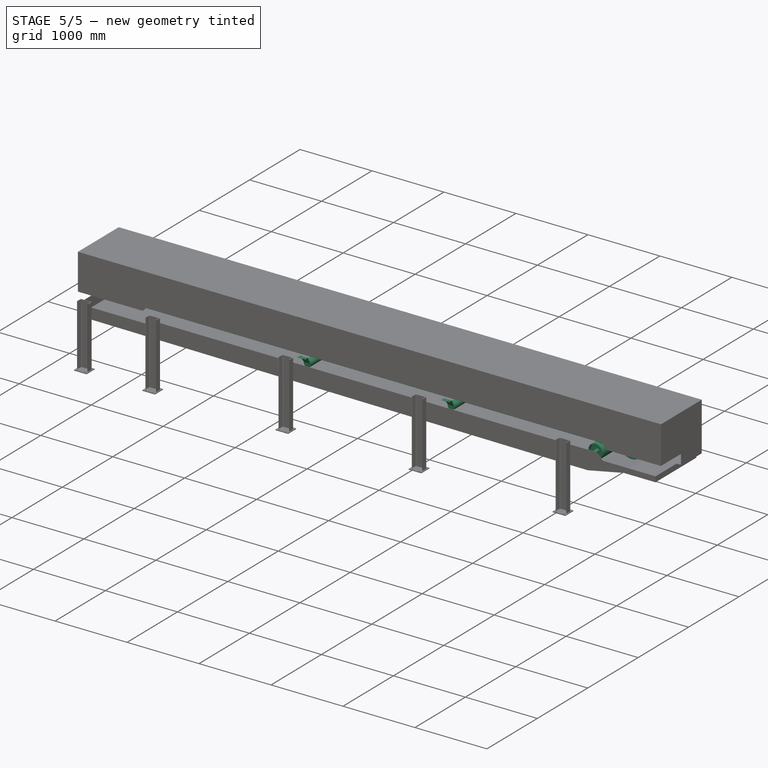
[diagram: stage 5 of 5 — iso view after this stage's code; geometry added in this stage tinted green]
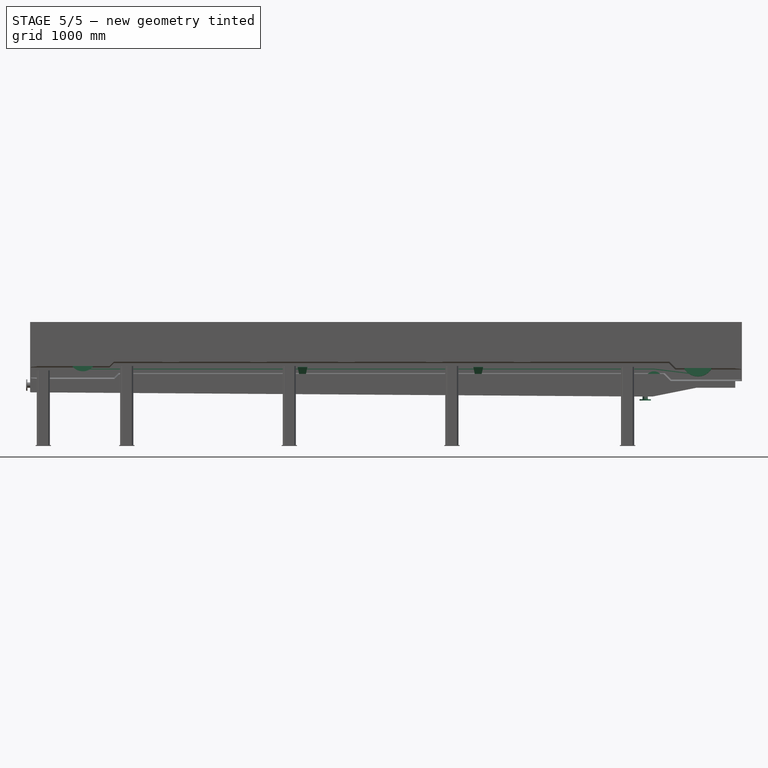
[diagram: stage 5 of 5 — front view after this stage's code; geometry added in this stage tinted green]
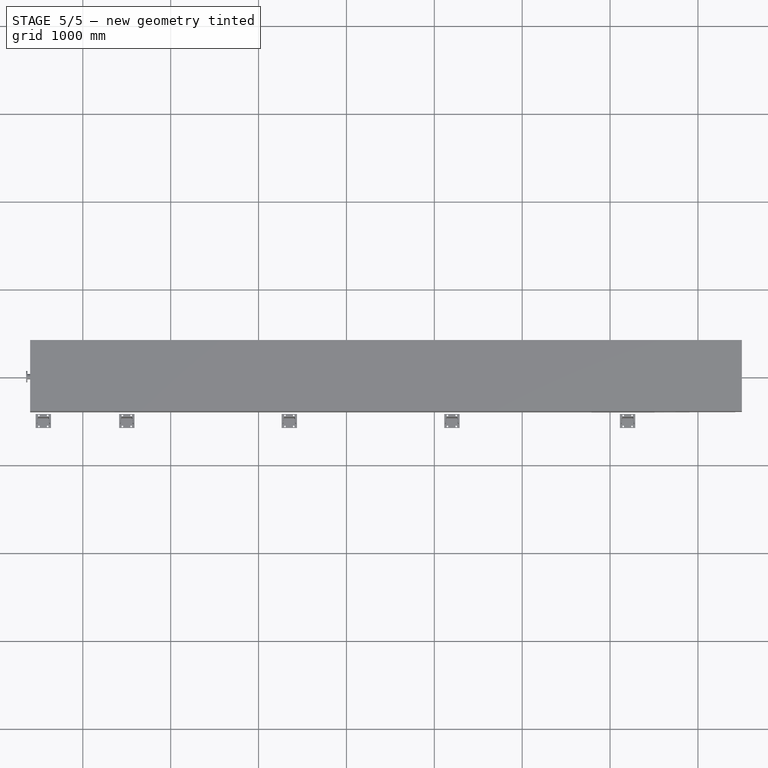
[diagram: stage 5 of 5 — top view after this stage's code; geometry added in this stage tinted green]
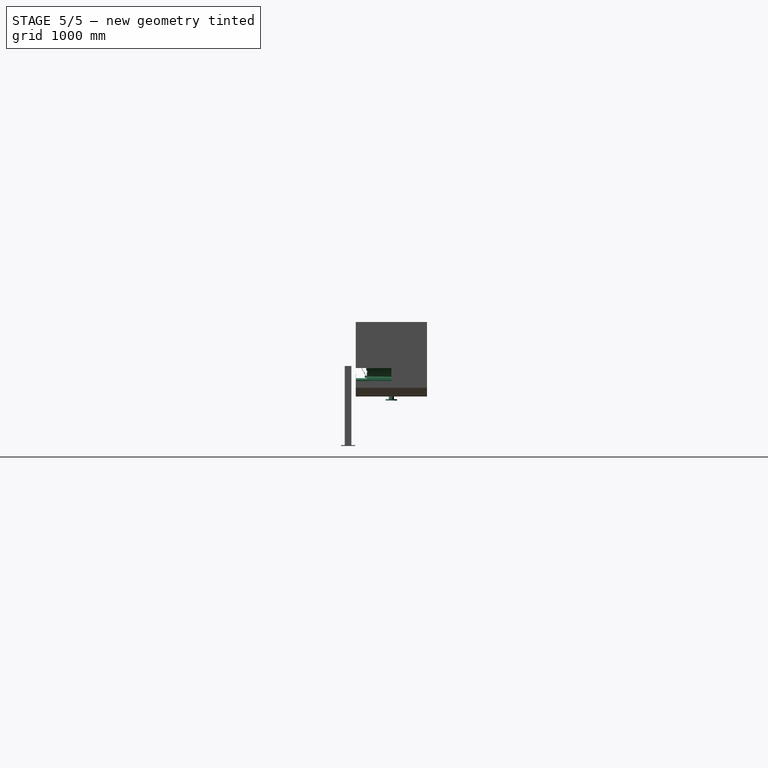
[diagram: stage 5 of 5 — right view after this stage's code; geometry added in this stage tinted green]
FEATURE [Spreadsheet::Sheet] Spreadsheet
  cells = C1='tailPulleyHIght Ht; D1='Inclination k(degree); E1='Array_n; F1='BeltWidth B0; G1='h1; H1='h2; I1='post_x; J1='pst_c; A2='CenterDistance C0; B2(C0)=7000; C2(Ht)=1000; D2(k)=0; E2(n0)==C0 / 2500; F2=500; G2(h1)=50; H2(h2)=73; I2(post_x)=1850; J2(post_c)=1; A3='BeltWidth B0; B3(B0)=500; C3=400; D3=450; E3=500; F3=600; G3=700; H3=750; I3=800; J3=900; K3=1000; A4='Belt b1; B4(b1)=180; C4=145; D4=165; E4=180; F4=210; G4=250; H4=265; I4=280; J4=315; K4=345; A5='Belt b2; B5(b2)=160; C5==(C3 - C4) / 2; D5==(D3 - D4) / 2; E5==(E3 - E4) / 2; F5==(F3 - F4) / 2; G5==(G3 - G4) / 2; H5==(H3 - H4) / 2; I5==(I3 - I4) / 2; J5==(J3 - J4) / 2; K5==(K3 - K4) / 2; A6='BeltThickness t0; B6(t0)=10; C6=10; D6=10; E6=10; F6=10; G6=10; H6=10; I6=10; J6=10; K6=10; A7='HeadPullyDia D0; B7(D0)=360; C7=300; D7=300; E7=360; F7=360; G7=360; H7=460; I7=460; J7=520; K7=520; A8='TailPullyDia d1; B8(d1)=300; C8=260; D8=260; E8=300; F8=300; G8=300; H8=390; I8=390; J8=440; K8=440; A9='SnapPullyDia d2; B9(d2)=200; C9=200; D9=200; E9=200; F9=200; G9=200; H9=200; I9=200; J9=200; K9=200; A10='SnapPully Ls; B10(Ls)=500; C10=400; D10=400; E10=400; F10=500; G10=500; H10=500; I10=500; J10=500; K10=500; A11='SnapPully h0; B11(h0)=180; C11=180; D11=180; E11=160; F11=180; G11=180; H11=180; I11=180; J11=180; K11=180; A12='hontaihaba W; B12(W0)=810; C12=710; D12=760; E12=810; F12=910; G12=910; H12=910; I12=910; J12=910; K12=910; A13='hontai _h; B13=103.5; C13=103.5; D13=103.5; E13=103.5; F13=103.5; G13=103.5; H13=103.5; I13=103.5; J13=103.5; K13=103.5; A14='hontai_z; B14=16; C14=16; D14=16; E14=16; F14=16; G14=16; H14=16; I14=16; J14=16; K14=16; A15='takeup_x; B15=-403.47; C15=-403.47; D15=-403.47; E15=-403.47; F15=-403.47; G15=-403.47; H15=-403.47; I15=-403.47; J15=-403.47; K15=-403.47; A16='takeup_y; B16=-362.8; C16=-362.8; D16=-362.8; E16=-362.8; F16=-410; G16=-410; H16=-410; I16=-410; J16=-410; K16=-410; A17='takeup_z; B17=-87; C17=-87; D17=-87; E17=-87; F17=-57; G17=-57; H17=-57; I17=-57; J17=-57; K17=-57; A18='carrierPitch  cp; B18=1000; A19='returnPitch rp; B19=1500; A20='outletL; B20(outletL)=50; A21='outletK; B21(outletK)=0; A22='insertX; B22(insertX)=300; A23='insertK; B23(insertK)=0
FEATURE [Part::FeaturePython] CPM2_4145  # WARN: FeaturePython — macro-defined, semantics opaque (R4)
  A = 550
  B1 = 500
  B2 = 600
  C = 70
  D = 360
  D1 = 356
  D2 = 228
  D3 = 278
  E = 170
  F = 0
  G1 = 30
  G2 = 30
  H = 33
  L = 863
  M = 210
  N1 = 60
  N2 = 60
  P = 75
  Placement = pos=(7000,0,-30) rot=(0,0,1;1.5708rad)
  R = 20
  a = 11
  b = 11
  d = 18
  key = 5
  expr: .Placement.Base.x = Spreadsheet.C0
FEATURE [Part::FeaturePython] BendPulley  # WARN: FeaturePython — macro-defined, semantics opaque (R4)
  A = 50
  B = 103.5
  C = 600
  D = 200
  E = 0
  L = 550
  Placement = pos=(6500,1.79e-13,-250.18) rot=(0,0,-1;1.5708rad)
  d1 = 50
  d2 = 45
  d3 = 0
  t1 = 9
  t2 = 9
  t3 = 8
  t4 = 8
  expr: .Placement.Base.x = Spreadsheet.C0 - 500
FEATURE [Part::Feature] Part__Feature003  label="UCP208FC"
  Placement = pos=(6500,-360.5,-250.18) rot=(0,0.707107,-0.707107;3.14159rad)
  shape: bbox 184 x 86 x 106.1 mm, 117 faces (baked)
  expr: .Placement.Base.x = Spreadsheet.C0 - 500
FEATURE [Part::Mirroring] Part__Mirroring001  label="UCP208FC (Mirror #3)"
  Base = (0,0,0)
  Normal = (0,1,0)
  Source = -> Part__Feature003
FEATURE [Part::Feature] Part__Feature  label="UCT204-Nipple"
  Placement = pos=(402.082,85.3824,0) rot=(0.519988,-0.677661,0.519988;1.95044rad)
  shape: bbox 18.99 x 12.27 x 15.73 mm, 44 faces (baked)
FEATURE [Part::Feature] Part__Feature001  label="UCT204-Housing2"
  Placement = pos=(435,77,0) rot=(0,0,1;0rad)
  shape: bbox 145.2 x 120 x 60 mm, 83 faces (baked)
FEATURE [Part::Feature] Part__Feature002  label="UCTL204-300-Frame"
  Placement = pos=(285,77,0) rot=(0,0,1;0rad)
  shape: bbox 630 x 146 x 56.5 mm, 312 faces (baked)
FEATURE [App::Part] UCTL204J_300_0  label="UCTL204J-300-0"
  Group = -> [Part__Feature,Part__Feature001,Part__Feature002]
  Origin = -> Origin008
FEATURE [App::Part] _______________________________20_v1  label="テークアップユニット_20 v1"
  Group = -> [UCTL204J_300_0]
  Origin = -> Origin001
  Placement = pos=(-435,-360,-77) rot=(1,0,0;1.5708rad)
FEATURE [Part::FeaturePython] Take_upPulley001  # WARN: FeaturePython — macro-defined, semantics opaque (R4)
  A = 50
  B = 50
  C = 668
  D = 300
  E = 0
  L = 550
  Placement = pos=(0,0,0) rot=(0,0,-1;1.5708rad)
  d1 = 30
  d2 = 20
  d3 = 0
  t1 = 9
  t2 = 9
  t3 = 8
  t4 = 8
FEATURE [Sketcher::SketchObject] Sketch015
  ArcFitTolerance = 0
  FullyConstrained = true
  MakeInternals = false
  sketch-geometry (10):
    g0: LineSegment StartX=-600 StartY=-625 StartZ=0 EndX=-600 EndY=625 EndZ=0
    g1: LineSegment StartX=-600 StartY=625 StartZ=0 EndX=600 EndY=625 EndZ=0
    g2: LineSegment StartX=600 StartY=625 StartZ=0 EndX=600 EndY=-625 EndZ=0
    g3: LineSegment StartX=600 StartY=-625 StartZ=0 EndX=-600 EndY=-625 EndZ=0
    g4: GeomPoint [constr] X=0 Y=0 Z=0
    g5: LineSegment StartX=-525 StartY=-550 StartZ=0 EndX=-525 EndY=550 EndZ=0
    g6: LineSegment StartX=-525 StartY=550 StartZ=0 EndX=525 EndY=550 EndZ=0
    g7: LineSegment StartX=525 StartY=550 StartZ=0 EndX=525 EndY=-550 EndZ=0
    g8: LineSegment StartX=525 StartY=-550 StartZ=0 EndX=-525 EndY=-550 EndZ=0
    g9: GeomPoint [constr] X=0 Y=0 Z=0
  constraints (24):
    c: Coincident(g0,g1)
    c: Coincident(g1,g2)
    c: Coincident(g2,g3)
    c: Coincident(g3,g0)
    c: Horizontal(g1)
    c: Horizontal(g3)
    c: Vertical(g0)
    c: Vertical(g2)
    c: Symmetric(g1,g0,g4)
    c: Coincident(g4,g-1)
    c: Distance(g0) = 1250
    c: Distance(g4,g0) = 600
    c: Coincident(g5,g6)
    c: Coincident(g6,g7)
    c: Coincident(g7,g8)
    c: Coincident(g8,g5)
    c: Horizontal(g6)
    c: Horizontal(g8)
    c: Vertical(g5)
    c: Vertical(g7)
    c: Symmetric(g6,g5,g9)
    c: Coincident(g9,g4)
    c: Distance(g5,g0) = 75
    c: Distance(g5,g1) = 75
FEATURE [Part::Mirroring] Mirror001  label="テークアップユニット_20 v1 (mirrored)"
  Base = (-400,0,0)
  Normal = (0,-1,0)
  Source = -> _______________________________20_v1
FEATURE [Part::Compound] Compound  label="takeUp"
  Links = -> [Mirror001,_______________________________20_v1]
FEATURE [App::Part] Part004  label="pulley"
  Group = -> [Take_upPulley001]
  Origin = -> Origin003
  Placement = pos=(0,0,0) rot=(0,1,0;2.1293rad)
FEATURE [Spreadsheet::Sheet] Spreadsheet001  label="Spreadsheet_takeup"
  cells = A1='beltWidth; B1='takeup d0; C1='d1=d0+10; D1='pulley D0; E1='puller L0; F1='puller C0; G1='puller B0; H1='takeup Y; A2(W0)=600; B2(d0)=20; C2(d1)==d0 + 10; D2(D0)=300; E2(L0)=650; F2(C0)=768; G2(B0)=50; H2(Y)=410; A3=400; B3=20; C3==d0 + 10; D3=300; E3=450; F3=568; G3=50; H3=310; A4=450; B4=20; C4==d0 + 10; D4=300; E4=500; F4=618; G4=50; H4=335; A5=500; B5=20; C5==d0 + 10; D5=300; E5=550; F5=668; G5=50; H5=360; A6=600; B6=20; C6==d0 + 10; D6=300; E6=650; F6=768; G6=50; H6=410; A7=700; B7=20; C7==d0 + 10; D7=300; E7=750; F7=868; G7=50; H7=460; A8=750; B8=20; C8==d0 + 10; D8=300; E8=800; F8=918; G8=50; H8=485; A9=800; B9=20; C9==d0 + 10; D9=300; E9=850; F9=968; G9=50; H9=510; A10=900; B10=20; C10==d0 + 10; D10=300; E10=950; F10=1068; G10=50; H10=560; A11=1000; B11=20; C11==d0 + 10; D11=300; E11=1050; F11=1168; G11=50; H11=610
FEATURE [App::Part] Part003  label="takeUpAssy20d"
  Group = -> [_______________________________20_v1,Mirror001,Compound,Sketch015,Part004,Spreadsheet001]
  Origin = -> Origin002
FEATURE [App::Part] Part005  label="bendPulley"
  Group = -> [BendPulley,Part__Feature003,Part__Mirroring001]
  Origin = -> Origin009
  Placement = pos=(0,0,-8) rot=(0,0,1;0rad)
FEATURE [Sketcher::SketchObject] Sketch016
  ArcFitTolerance = 0
  FullyConstrained = true
  MakeInternals = false
  Placement = pos=(0,0,0) rot=(0.57735,0.57735,0.57735;2.0944rad)
  sketch-geometry (6):
    g0: LineSegment StartX=200 StartY=215 StartZ=0 EndX=206 EndY=215 EndZ=0
    g1: LineSegment StartX=206 StartY=215 StartZ=0 EndX=206 EndY=394 EndZ=0
    g2: LineSegment StartX=200 StartY=400 StartZ=0 EndX=200 EndY=215 EndZ=0
    g3: LineSegment StartX=250 StartY=400 StartZ=0 EndX=250 EndY=394 EndZ=0
    g4: LineSegment StartX=250 StartY=394 StartZ=0 EndX=206 EndY=394 EndZ=0
    g5: LineSegment StartX=200 StartY=400 StartZ=0 EndX=250 EndY=400 EndZ=0
  constraints (18):
    c: Coincident(g0,g1)
    c: Coincident(g2,g0)
    c: Horizontal(g0)
    c: Vertical(g1)
    c: Vertical(g2)
    c: DistanceX(g-2,g2) = 200
    c: Vertical(g3)
    c: Coincident(g3,g4)
    c: Horizontal(g4)
    c: Coincident(g1,g4)
    c: Coincident(g5,g2)
    c: Coincident(g5,g3)
    c: Horizontal(g5)
    c: DistanceY(g3,g3) = 6
    c: DistanceX(g5,g5) = 50
    c: DistanceY(g2,g2) = 185
    c: DistanceX(g0,g0) = 6
    c: DistanceY(g-1,g2) = 400
FEATURE [Part::Extrusion] Extrude010
  Base = -> Sketch016
  Dir = (1,0,0)
  DirMode = 2
  FaceMakerClass = Part::FaceMakerBullseye
  FaceMakerMode = 3
  LengthFwd = 7000
  LengthRev = 0
  Solid = true
  Symmetric = false
  expr: LengthFwd = Spreadsheet.C0
FEATURE [Sketcher::SketchObject] Sketch017
  ArcFitTolerance = 0
  FullyConstrained = false
  MakeInternals = false
  Placement = pos=(0,0,0) rot=(0.57735,0.57735,0.57735;2.0944rad)
  sketch-geometry (2):
    g0: LineSegment StartX=205.947 StartY=393.774 StartZ=0 EndX=443.566 EndY=393.774 EndZ=0
    g1: LineSegment StartX=443.566 StartY=393.774 StartZ=0 EndX=443.566 EndY=-26.5991 EndZ=0
  constraints (3):
    c: Horizontal(g0)
    c: Vertical(g1)
    c: Coincident(g1,g0)
FEATURE [Part::FeaturePython] AngleSteel  # WARN: FeaturePython — macro-defined, semantics opaque (R4)
  A = 40
  B = 40
  L = 1000
  Placement = pos=(0,223.3,394) rot=(1,0,0;3.14159rad)
  Solid = false
  g0 = 7.85
  mass = 0
  size = 5
  standard = SS_Equal
  t = 5
FEATURE [Part::Sweep] Sweep002
  Frenet = false
  Sections = -> [AngleSteel]
  Solid = true
  Spine = -> Sketch017 [Edge1,Edge2]
  Transition = 1
FEATURE [Sketcher::SketchObject] Sketch018
  ArcFitTolerance = 0
  AttachmentSupport = -> [Sweep002]
  FullyConstrained = false
  MakeInternals = false
  MapMode = 5
  Placement = pos=(0,6.4e-15,-26.5991) rot=(1,0,0;3.14159rad)
  sketch-geometry (4):
    g0: LineSegment StartX=-30 StartY=-443.912 StartZ=0 EndX=40.1109 EndY=-443.912 EndZ=0
    g1: LineSegment StartX=40.1109 StartY=-443.912 StartZ=0 EndX=40.1109 EndY=-403.912 EndZ=0
    g2: LineSegment StartX=40.1109 StartY=-403.912 StartZ=0 EndX=-30 EndY=-403.912 EndZ=0
    g3: LineSegment StartX=-30 StartY=-403.912 StartZ=0 EndX=-30 EndY=-443.912 EndZ=0
  constraints (10):
    c: Coincident(g0,g1)
    c: Coincident(g1,g2)
    c: Coincident(g2,g3)
    c: Coincident(g3,g0)
    c: Horizontal(g0)
    c: Horizontal(g2)
    c: Vertical(g1)
    c: Vertical(g3)
    c: DistanceY(g3,g3) = 40
    c: DistanceX(g-2,g0) = -30
FEATURE [Part::Extrusion] Extrude011
  Base = -> Sketch018
  Dir = (0,0,-1)
  DirMode = 2
  FaceMakerClass = Part::FaceMakerBullseye
  FaceMakerMode = 3
  LengthFwd = 6
  LengthRev = 0
  Reversed = true
  Solid = true
  Symmetric = false
FEATURE [App::Part] Part009  label="post001"
  Group = -> [Sketch017,Sweep002,AngleSteel,Extrude011,Sketch018]
  Origin = -> Origin013
  Placement = pos=(449,0,0) rot=(0,0,1;0rad)
FEATURE [Part::FeaturePython] Clone001  label="post002"  # Draft clone (typed FeaturePython)
  AttacherType = Attacher::AttachEngine3D
  Fuse = false
  Objects = -> [Part009]
  Placement = pos=(6600,0,0) rot=(0,0,1;0rad)
  Scale = (1,1,1)
  expr: .Placement.Base.x = Spreadsheet.C0 - 400
FEATURE [Part::FeaturePython] Array003  # Draft array (typed FeaturePython)
  AlwaysSyncPlacement = false
  Angle = 360
  ArrayType = 0
  Axis = (0,0,1)
  Base = -> Part009
  Center = (0,0,0)
  Count = 4
  ExpandArray = false
  Fuse = false
  IntervalAxis = (0,0,0)
  IntervalX = (1500,0,0)
  IntervalY = (0,100,0)
  IntervalZ = (0,0,100)
  NumberCircles = 3
  NumberPolar = 5
  NumberX = 4
  NumberY = 1
  NumberZ = 1
  PlacementList = 4 placements: arithmetic series from (449,0,0) step (1500,0,0) to (4949,0,0)
  RadialDistance = 50
  ScaleList = (4) [(1,1,1),(1,1,1),(1,1,1),(1,1,1)]
  Symmetry = 1
  TangentialDistance = 25
  expr: NumberX = Spreadsheet.C0 / 1500 - 1
FEATURE [App::Part] Part008  label="skirt"
  Group = -> [Sketch016,Extrude010,Part009,Clone001,Array003]
  Origin = -> Origin012
  Placement = pos=(0,-50,0) rot=(0,0,1;0rad)
FEATURE [Part::Mirroring] Mirror003  label="skirt001"
  Base = (-900,0,0)
  Normal = (0,-1,0)
  Source = -> Part008
FEATURE [Part::FeaturePython] Single_flange_straight_pipe  # WARN: FeaturePython — macro-defined, semantics opaque (R4)
  L = 50
  Placement = pos=(6400,0,-482.41) rot=(0,-1,0;1.5708rad)
  dia = 6
  fittings = 06_Single_flange_straight_pipe
  material = 0
  standard = 0
  standard2 = 0
  expr: .Placement.Base.x = Spreadsheet.C0 - 600
FEATURE [Sketcher::SketchObject] Sketch024
  ArcFitTolerance = 0
  FullyConstrained = false
  MakeInternals = false
  MapMode = 5
  Placement = pos=(0,-1.041e-13,-469) rot=(0,0,1;0rad)
  expr: Constraints[1] = Spreadsheet.C0 - 750
  sketch-geometry (1):
    g0: Circle CenterX=6250 CenterY=0 CenterZ=0 NormalX=0 NormalY=0 NormalZ=1 AngleXU=0 Radius=30.4407
  constraints (2):
    c: PointOnObject(g0,g-1)
    c: DistanceX(g-1,g0) = 6250
FEATURE [Part::MultiFuse] Fusion009
  Shapes = -> [Single_flange_straight_pipe]
FEATURE [Sketcher::SketchObject] Sketch
  ArcFitTolerance = 0
  FullyConstrained = true
  MakeInternals = false
  Placement = pos=(0,0,0) rot=(0.57735,0.57735,0.57735;2.0944rad)
  expr: Constraints[1] = Spreadsheet.B0
  expr: Constraints[2] = Spreadsheet.D0 / 2
  sketch-geometry (1):
    g0: LineSegment StartX=-250 StartY=180 StartZ=0 EndX=250 EndY=180 EndZ=0
  constraints (3):
    c: Symmetric(g0,g0,g-2)
    c: DistanceX(g0,g0) = 500
    c: Distance(g-1,g0) = 180
FEATURE [Sketcher::SketchObject] Sketch001
  ArcFitTolerance = 0
  FullyConstrained = true
  MakeInternals = false
  Placement = pos=(7000,0,0) rot=(0.57735,0.57735,0.57735;2.0944rad)
  expr: .Placement.Base.x = Spreadsheet.C0
  expr: Constraints[1] = Spreadsheet.B0
  expr: Constraints[2] = Spreadsheet.D0 / 2
  sketch-geometry (1):
    g0: LineSegment StartX=-250 StartY=180 StartZ=0 EndX=250 EndY=180 EndZ=0
  constraints (3):
    c: Symmetric(g0,g0,g-2)
    c: DistanceX(g0,g0) = 500
    c: Distance(g-1,g0) = 180
FEATURE [Sketcher::SketchObject] Sketch002
  ArcFitTolerance = 0
  FullyConstrained = true
  MakeInternals = false
  Placement = pos=(500,0,0) rot=(0.57735,0.57735,0.57735;2.0944rad)
  expr: Constraints[5] = Spreadsheet.b2
  expr: Constraints[6] = Spreadsheet.b2
  expr: Constraints[7] = Spreadsheet.D0 / 2
  expr: Constraints[8] = Spreadsheet.b1
  sketch-geometry (3):
    g0: LineSegment StartX=-240.351 StartY=234.723 StartZ=0 EndX=-90 EndY=180 EndZ=0
    g1: LineSegment StartX=-90 StartY=180 StartZ=0 EndX=90 EndY=180 EndZ=0
    g2: LineSegment StartX=90 StartY=180 StartZ=0 EndX=240.351 EndY=234.723 EndZ=0
  constraints (9):
    c: Coincident(g0,g1)
    c: Coincident(g1,g2)
    c: Angle(g2,g1) = 2.79253
    c: Angle(g1,g0) = 2.79253
    c: Symmetric(g1,g0,g-2)
    c: Distance(g2) = 160
    c: Distance(g0) = 160
    c: DistanceY(g-1,g1) = 180
    c: DistanceX(g1,g1) = 180
FEATURE [Sketcher::SketchObject] Sketch003
  ArcFitTolerance = 0
  FullyConstrained = true
  MakeInternals = false
  Placement = pos=(6500,0,0) rot=(0.57735,0.57735,0.57735;2.0944rad)
  expr: .Placement.Base.x = Spreadsheet.C0 - 500
  expr: Constraints[5] = Spreadsheet.b2
  expr: Constraints[6] = Spreadsheet.b2
  expr: Constraints[7] = Spreadsheet.D0 / 2
  expr: Constraints[8] = Spreadsheet.b1
  sketch-geometry (3):
    g0: LineSegment StartX=-240.351 StartY=234.723 StartZ=0 EndX=-90 EndY=180 EndZ=0
    g1: LineSegment StartX=-90 StartY=180 StartZ=0 EndX=90 EndY=180 EndZ=0
    g2: LineSegment StartX=90 StartY=180 StartZ=0 EndX=240.351 EndY=234.723 EndZ=0
  constraints (9):
    c: Coincident(g0,g1)
    c: Coincident(g1,g2)
    c: Angle(g2,g1) = 2.79253
    c: Angle(g1,g0) = 2.79253
    c: Symmetric(g1,g0,g-2)
    c: Distance(g2) = 160
    c: Distance(g0) = 160
    c: DistanceY(g-1,g1) = 180
    c: DistanceX(g1,g1) = 180
FEATURE [Sketcher::SketchObject] Sketch005
  ArcFitTolerance = 0
  FullyConstrained = true
  MakeInternals = false
  Placement = pos=(7000,0,0) rot=(1,0,0;1.5708rad)
  expr: .Placement.Base.x = Spreadsheet.C0
  expr: Constraints[0] = Spreadsheet.D0
  expr: Constraints[10] = Spreadsheet.Ls
  expr: Constraints[20] = Spreadsheet.t0
  expr: Constraints[22] = Spreadsheet.t0
  expr: Constraints[29] = (Spreadsheet.D0 - Spreadsheet.d1) / 2
  expr: Constraints[2] = Spreadsheet.d1
  expr: Constraints[6] = Spreadsheet.d2 / 2
  expr: Constraints[8] = Spreadsheet.C0
  sketch-geometry (12):
    g0: ArcOfCircle CenterX=0 CenterY=0 CenterZ=0 NormalX=0 NormalY=0 NormalZ=1 AngleXU=0 Radius=180 StartAngle=4.58871 EndAngle=7.85398
    g1: ArcOfCircle CenterX=-7000 CenterY=30 CenterZ=0 NormalX=0 NormalY=0 NormalZ=1 AngleXU=0 Radius=150 StartAngle=1.5708 EndAngle=4.71239
    g2: LineSegment StartX=-22.2048 StartY=-178.625 StartZ=0 EndX=-487.664 EndY=-120.764 EndZ=0
    g3: LineSegment StartX=-500 StartY=-120 StartZ=0 EndX=-7000 EndY=-120 EndZ=0
    g4: ArcOfCircle CenterX=-500 CenterY=-220 CenterZ=0 NormalX=0 NormalY=0 NormalZ=1 AngleXU=0 Radius=100 StartAngle=1.44712 EndAngle=1.5708
    g5: ArcOfCircle CenterX=-7000 CenterY=30 CenterZ=0 NormalX=0 NormalY=0 NormalZ=1 AngleXU=0 Radius=160 StartAngle=1.5708 EndAngle=4.71239
    g6: LineSegment StartX=-7000 StartY=-130 StartZ=0 EndX=-500 EndY=-130 EndZ=0
    g7: ArcOfCircle CenterX=-500 CenterY=-220 CenterZ=0 NormalX=0 NormalY=0 NormalZ=1 AngleXU=0 Radius=90 StartAngle=1.44712 EndAngle=1.5708
    g8: LineSegment StartX=-488.898 StartY=-130.687 StartZ=0 EndX=-23.4385 EndY=-188.549 EndZ=0
    g9: ArcOfCircle CenterX=0 CenterY=0 CenterZ=0 NormalX=0 NormalY=0 NormalZ=1 AngleXU=0 Radius=190 StartAngle=4.58871 EndAngle=7.85398
    g10: LineSegment StartX=0 StartY=180 StartZ=0 EndX=5.82e-14 EndY=190 EndZ=0
    g11: LineSegment StartX=-7000 StartY=180 StartZ=0 EndX=-7000 EndY=190 EndZ=0
  constraints (32):
    c: Diameter(g0) = 360
    c: Coincident(g-1,g0)
    c: Diameter(g1) = 300
    c: Horizontal(g3)
    c: Tangent(g2,g4) = -1.5708
    c: Tangent(g3,g4) = -1.5708
    c: Radius(g4) = 100
    c: Coincident(g1,g3)
    c: DistanceX(g1,g0) = 7000
    c: Vertical(g0,g0)
    c: DistanceX(g4,g0) = 500
    c: Vertical(g1,g1)
    c: Coincident(g5,g1)
    c: Tangent(g5,g6) = -1.5708
    c: Tangent(g6,g7) = 1.5708
    c: Tangent(g8,g9) = -1.5708
    c: PointOnObject(g9,g-2)
    c: Coincident(g10,g0)
    c: Coincident(g10,g9)
    c: Coincident(g9,g0)
    c: DistanceY(g10,g10) = 10
    c: Coincident(g4,g7)
    c: DistanceY(g5,g1) = 10
    c: Vertical(g1,g5)
    c: Coincident(g11,g1)
    c: Coincident(g11,g5)
    c: Tangent(g7,g8) = 1.5708
    c: Vertical(g1,g1)
    c: Parallel(g8,g2)
    c: DistanceY(g-1,g1) = 30
    c: Parallel(g6,g3)
    c: Coincident(g2,g0)
FEATURE [Part::Extrusion] Extrude
  Base = -> Sketch005
  Dir = (0,-1,2e-16)
  DirMode = 2
  FaceMakerClass = Part::FaceMakerBullseye
  FaceMakerMode = 3
  LengthFwd = 500
  LengthRev = 0
  Solid = true
  Symmetric = true
  expr: LengthFwd = Spreadsheet.B0
FEATURE [Sketcher::SketchObject] Sketch025
  ArcFitTolerance = 0
  FullyConstrained = true
  MakeInternals = false
  Placement = pos=(0,0,0) rot=(1,0,0;1.5708rad)
  sketch-geometry (1):
    g0: LineSegment StartX=0 StartY=180 StartZ=0 EndX=500 EndY=180 EndZ=0
  constraints (4):
    c: Horizontal(g0)
    c: Vertical(g0,g-1)
    c: DistanceY(g-1,g0) = 180
    c: DistanceX(g0,g0) = 500
FEATURE [Sketcher::SketchObject] Sketch008
  ArcFitTolerance = 0
  FullyConstrained = true
  MakeInternals = false
  Placement = pos=(0,0,0) rot=(1,0,0;1.5708rad)
  expr: Constraints[2] = Spreadsheet.C0
  sketch-geometry (1):
    g0: LineSegment StartX=6500 StartY=180 StartZ=0 EndX=7000 EndY=180 EndZ=0
  constraints (4):
    c: Horizontal(g0)
    c: DistanceY(g-1,g0) = 180
    c: DistanceX(g-1,g0) = 7000
    c: DistanceX(g0,g0) = 500
FEATURE [Sketcher::SketchObject] Sketch009
  ArcFitTolerance = 0
  FullyConstrained = true
  MakeInternals = false
  Placement = pos=(0,0,0) rot=(1,0,0;1.5708rad)
  sketch-geometry (1):
    g0: LineSegment StartX=500 StartY=180 StartZ=0 EndX=4500 EndY=180 EndZ=0
  constraints (4):
    c: Horizontal(g0)
    c: DistanceX(g-1,g0) = 500
    c: DistanceY(g-1,g0) = 180
    c: DistanceX(g0,g0) = 4000
FEATURE [Part::Sweep] Sweep003
  Frenet = false
  Sections = -> [Sketch002,Sketch003]
  Solid = false
  Spine = -> Sketch009 [Edge1]
  Transition = 1
FEATURE [Part::Extrusion] Extrude017
  Base = -> Sweep003
  Dir = (0,0,1)
  DirMode = 0
  FaceMakerClass = Part::FaceMakerBullseye
  FaceMakerMode = 3
  LengthFwd = 10
  LengthRev = 0
  Solid = false
  Symmetric = false
FEATURE [Part::Feature] Carrier_500
  Placement = pos=(1000,-395,0) rot=(0,0,1;1.5708rad)
  shape: bbox 190 x 790 x 240.8 mm, 128 faces, 3 solids (baked)
FEATURE [Part::FeaturePython] Array  label="carrier"  # Draft array (typed FeaturePython)
  AlwaysSyncPlacement = false
  Angle = 360
  ArrayType = 0
  Axis = (0,0,1)
  Base = -> Carrier_500
  Center = (0,0,0)
  Count = 5
  ExpandArray = false
  Fuse = false
  IntervalAxis = (0,0,0)
  IntervalX = (1000,0,0)
  IntervalY = (0,100,0)
  IntervalZ = (0,0,100)
  NumberCircles = 3
  NumberPolar = 5
  NumberX = 5
  NumberY = 1
  NumberZ = 1
  PlacementList = 5 placements: arithmetic series from (1000,-395,0) step (1000,0,0) to (5000,-395,0)
  RadialDistance = 50
  ScaleList = (5) [(1,1,1),(1,1,1),(1,1,1),(1,1,1),(1,1,1)]
  Symmetry = 1
  TangentialDistance = 25
  expr: NumberX = Spreadsheet.C0 / Spreadsheet.B18 - 2
FEATURE [Part::Feature] Self_Aligning_Carrier_500
  Placement = pos=(6000,0,-32) rot=(0,0,-1;1.5708rad)
  shape: bbox 298 x 790 x 376 mm, 205 faces, 4 solids (baked)
  expr: .Placement.Base.x = Spreadsheet.C0 - 1000
FEATURE [Part::Feature] Return_500
  Placement = pos=(2500,0,0) rot=(0,0,1;1.5708rad)
  shape: bbox 110 x 790 x 159.5 mm, 37 faces (baked)
FEATURE [Part::FeaturePython] Array001  label="returnArray"  # Draft array (typed FeaturePython)
  AlwaysSyncPlacement = false
  Angle = 360
  ArrayType = 0
  Axis = (0,0,1)
  Base = -> Return_500
  Center = (0,0,0)
  Count = 2
  ExpandArray = false
  Fuse = false
  IntervalAxis = (0,0,0)
  IntervalX = (2000,0,0)
  IntervalY = (0,100,0)
  IntervalZ = (0,0,100)
  NumberCircles = 3
  NumberPolar = 5
  NumberX = 2
  NumberY = 1
  NumberZ = 1
  Placement = pos=(0,2.551e-05,-210) rot=(0,0,1;0rad)
  PlacementList = 2 placements: [(2500,0,0),(4500,0,0)]
  RadialDistance = 50
  ScaleList = (2) [(1,1,1),(1,1,1)]
  Symmetry = 1
  TangentialDistance = 25
  expr: NumberX = (Spreadsheet.C0 - 3000) / 2000
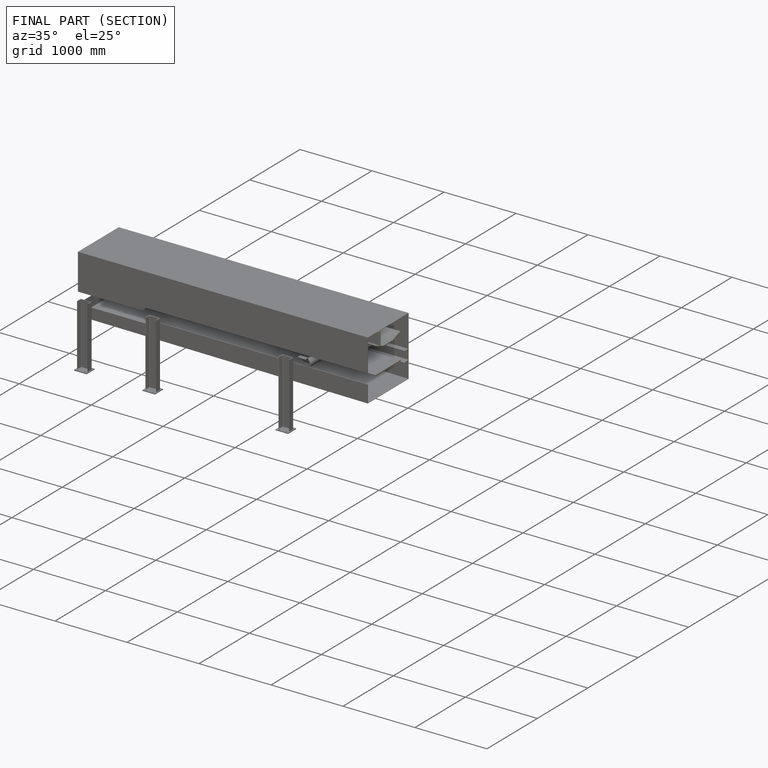
[diagram: finished part — half-section view (interior)]
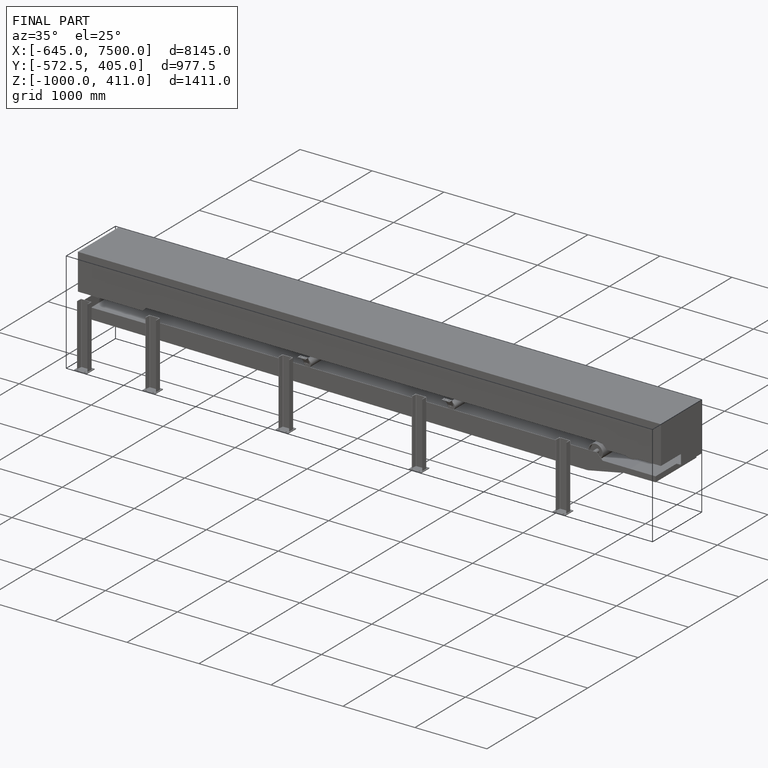
[diagram: finished part — iso view with bounding-box wireframe]
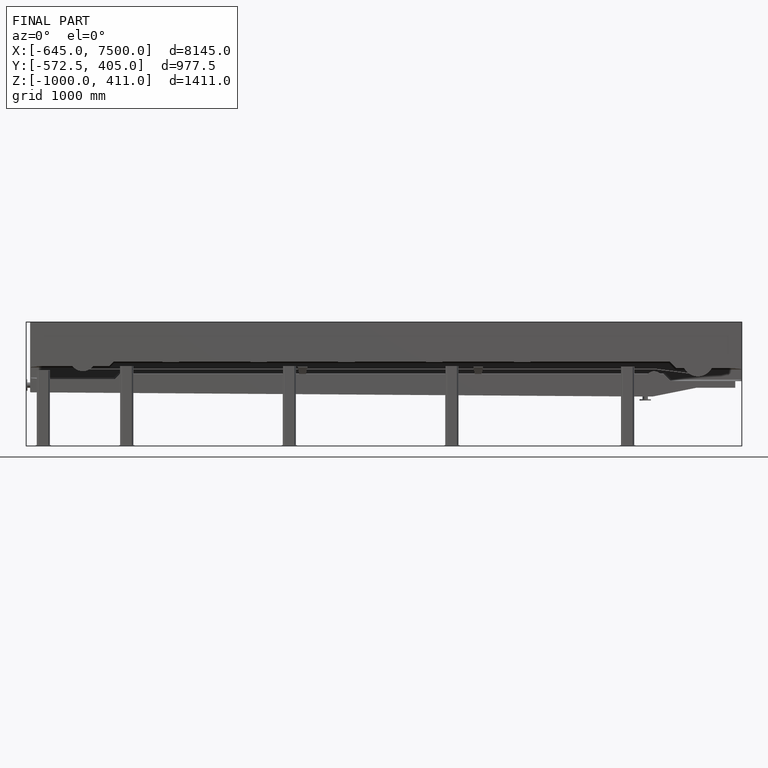
[diagram: finished part — front view with bounding-box wireframe]
